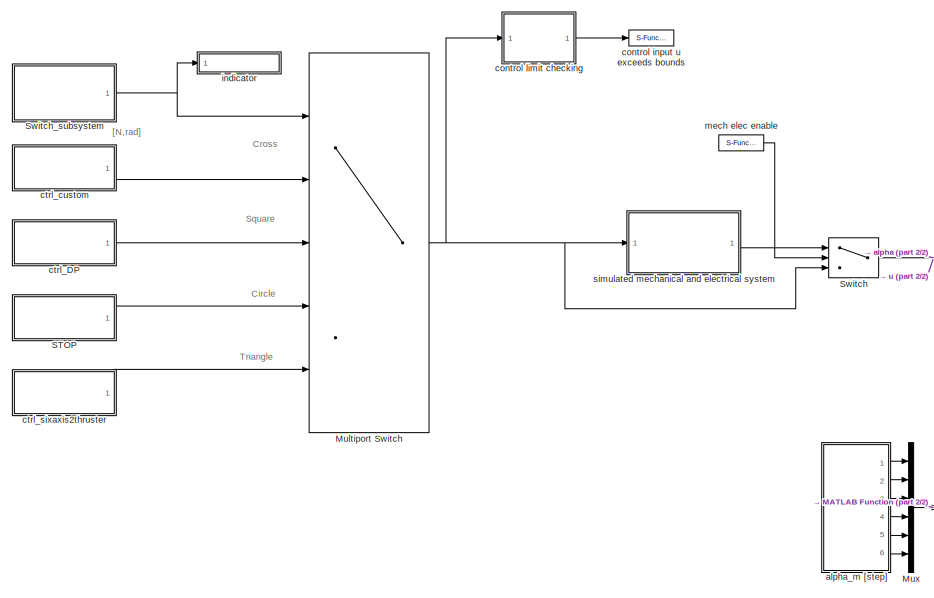
[diagram: root canvas - part 1/2, left side, full height]
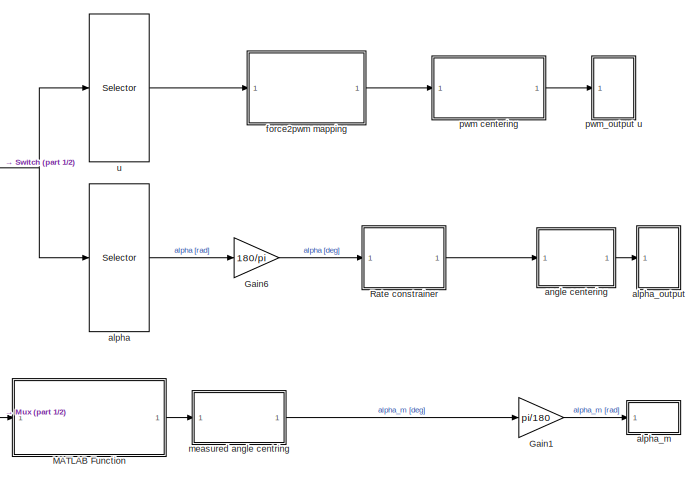
[diagram: root canvas - part 2/2, right side, full height]
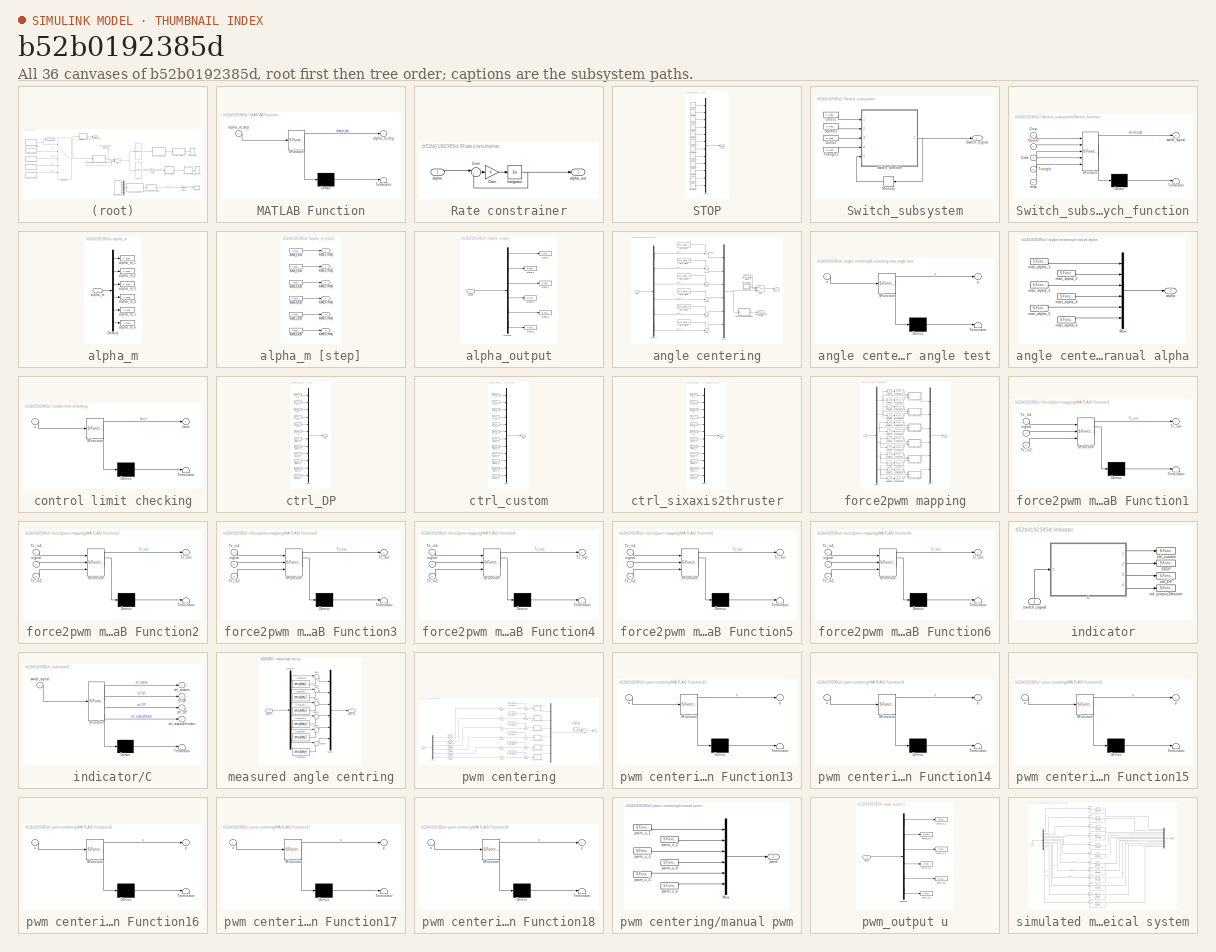
[diagram: thumbnail index - all 36 canvases of the model, root first then tree order]
MODEL slx_b52b0192385d
KIND model
CONFIG AbsTol = auto
CONFIG EnableMultiTasking = on
CONFIG FixedStep = 0.01
CONFIG MaxStep = auto
CONFIG MinStep = auto
CONFIG RelTol = 1e-3
CONFIG SampleTimeConstraint = Unconstrained
CONFIG Solver = ode3
CONFIG SolverName = ode3
CONFIG StartTime = 0.0
CONFIG StopTime = inf
BLOCK [Gain] Gain1
  Gain = pi/180
  OutDataTypeStr = Inherit: Inherit via internal rule
  ParamDataTypeStr = Inherit: Inherit via internal rule
  SaturateOnIntegerOverflow = off
BLOCK [Gain] Gain6
  Gain = 180/pi
  OutDataTypeStr = Inherit: Inherit via internal rule
  ParamDataTypeStr = Inherit: Inherit via internal rule
  SaturateOnIntegerOverflow = off
BLOCK [SubSystem] MATLAB Function
  ErrorFcn = Stateflow.Translate.translate
  PermitHierarchicalResolution = ExplicitOnly
  Ports = [1, 1]
  RequestExecContextInheritance = off
  SFBlockType = MATLAB Function
  TreatAsAtomicUnit = on
  Variant = off
BLOCK [Demux] MATLAB Function/ Demux 
  Outputs = 1
  Ports = [1, 1]
BLOCK [S-Function] MATLAB Function/ SFunction 
  EnableBusSupport = on
  FunctionName = sf_sfun
  PortCounts = [1 2]
  Ports = [1, 2]
  SFcnIsStateOwnerBlock = off
  SFunctionDeploymentMode = off
  Tag = Stateflow S-Function u2pwm 4
BLOCK [Terminator] MATLAB Function/ Terminator 
BLOCK [Outport] MATLAB Function/alpha_m_deg
  IconDisplay = Port number
BLOCK [Inport] MATLAB Function/alpha_m_step
  IconDisplay = Port number
BLOCK [MultiPortSwitch] Multiport Switch
  InputSameDT = off
  Inputs = 4
  Ports = [5, 1]
  SaturateOnIntegerOverflow = off
BLOCK [Mux] Mux
  DisplayOption = bar
  Inputs = 6
  Ports = [6, 1]
BLOCK [SubSystem] Rate constrainer
  Ports = [1, 1]
  RequestExecContextInheritance = off
  Variant = off
BLOCK [Gain] Rate constrainer/Gain
  Gain = 4
  OutDataTypeStr = Inherit: Inherit via internal rule
  ParamDataTypeStr = Inherit: Inherit via internal rule
  SaturateOnIntegerOverflow = off
BLOCK [Integrator] Rate constrainer/Integrator
  InitialCondition = [0 0 0 0 0 0]'
  Ports = [1, 1]
BLOCK [Sum] Rate constrainer/Sum
  IconShape = round
  InputSameDT = off
  Inputs = |+-
  OutDataTypeStr = Inherit: Inherit via internal rule
  Ports = [2, 1]
  SaturateOnIntegerOverflow = off
BLOCK [Inport] Rate constrainer/alpha
  IconDisplay = Port number
BLOCK [Outport] Rate constrainer/alpha_out
  IconDisplay = Port number
BLOCK [SubSystem] STOP
  Ports = [0, 1]
  RequestExecContextInheritance = off
  Variant = off
BLOCK [Constant] STOP/Constant
  Value = 0
BLOCK [Constant] STOP/Constant1
  Value = 0
BLOCK [Constant] STOP/Constant10
  Value = 0
BLOCK [Constant] STOP/Constant11
  Value = 0
BLOCK [Constant] STOP/Constant2
  Value = 0
BLOCK [Constant] STOP/Constant3
  Value = 0
BLOCK [Constant] STOP/Constant4
  Value = 0
BLOCK [Constant] STOP/Constant5
  Value = 0
BLOCK [Constant] STOP/Constant6
  Value = 0
BLOCK [Constant] STOP/Constant7
  Value = 0
BLOCK [Constant] STOP/Constant8
  Value = 0
BLOCK [Constant] STOP/Constant9
  Value = 0
BLOCK [Mux] STOP/Mux1
  DisplayOption = bar
  Inputs = 12
  Ports = [12, 1]
BLOCK [Outport] STOP/Out1
  IconDisplay = Port number
BLOCK [Switch] Switch
  Criteria = u2 ~= 0
  InputSameDT = off
  SaturateOnIntegerOverflow = off
BLOCK [SubSystem] Switch_subsystem
  Ports = [0, 1]
  RequestExecContextInheritance = off
  Variant = off
BLOCK [S-Function] Switch_subsystem/Circle1
  CopyFcn = NIVeriStand_MDL_functions('', 'IO_copy');
  DeleteFcn = NIVeriStand_MDL_functions('', 'IO_delete');
  EnableBusSupport = off
  FunctionName = NIVeriStandIO
  MoveFcn = set_param(gcb, 'Mask', 'on');
  Parameters = width dtype portnum stime stype btype
  Ports = [0, 1]
  Priority = 2
  SFcnIsStateOwnerBlock = off
  SFunctionDeploymentMode = off
BLOCK [S-Function] Switch_subsystem/Cross1
  CopyFcn = NIVeriStand_MDL_functions('', 'IO_copy');
  DeleteFcn = NIVeriStand_MDL_functions('', 'IO_delete');
  EnableBusSupport = off
  FunctionName = NIVeriStandIO
  MoveFcn = set_param(gcb, 'Mask', 'on');
  Parameters = width dtype portnum stime stype btype
  Ports = [0, 1]
  Priority = 3
  SFcnIsStateOwnerBlock = off
  SFunctionDeploymentMode = off
BLOCK [Memory] Switch_subsystem/Memory
  X0 = 4
BLOCK [S-Function] Switch_subsystem/Square1
  CopyFcn = NIVeriStand_MDL_functions('', 'IO_copy');
  DeleteFcn = NIVeriStand_MDL_functions('', 'IO_delete');
  EnableBusSupport = off
  FunctionName = NIVeriStandIO
  MoveFcn = set_param(gcb, 'Mask', 'on');
  Parameters = width dtype portnum stime stype btype
  Ports = [0, 1]
  Priority = 4
  SFcnIsStateOwnerBlock = off
  SFunctionDeploymentMode = off
BLOCK [SubSystem] Switch_subsystem/Switch_function
  ErrorFcn = Stateflow.Translate.translate
  PermitHierarchicalResolution = ExplicitOnly
  Ports = [5, 1]
  RequestExecContextInheritance = off
  SFBlockType = MATLAB Function
  TreatAsAtomicUnit = on
  Variant = off
BLOCK [Demux] Switch_subsystem/Switch_function/ Demux 
  Outputs = 1
  Ports = [1, 1]
BLOCK [S-Function] Switch_subsystem/Switch_function/ SFunction 
  EnableBusSupport = on
  FunctionName = sf_sfun
  PortCounts = [5 2]
  Ports = [5, 2]
  SFcnIsStateOwnerBlock = off
  SFunctionDeploymentMode = off
  Tag = Stateflow S-Function u2pwm 2
BLOCK [Terminator] Switch_subsystem/Switch_function/ Terminator 
BLOCK [Inport] Switch_subsystem/Switch_function/Circle
  IconDisplay = Port number
  Port = 3
BLOCK [Inport] Switch_subsystem/Switch_function/Cross
  IconDisplay = Port number
BLOCK [Inport] Switch_subsystem/Switch_function/Square
  IconDisplay = Port number
  Port = 2
BLOCK [Inport] Switch_subsystem/Switch_function/Triangle
  IconDisplay = Port number
  Port = 4
BLOCK [Outport] Switch_subsystem/Switch_function/switch_signal
  IconDisplay = Port number
BLOCK [Inport] Switch_subsystem/Switch_function/temp
  IconDisplay = Port number
  Port = 5
BLOCK [Outport] Switch_subsystem/Switch_signal
  IconDisplay = Port number
BLOCK [S-Function] Switch_subsystem/Triangle1
  CopyFcn = NIVeriStand_MDL_functions('', 'IO_copy');
  DeleteFcn = NIVeriStand_MDL_functions('', 'IO_delete');
  EnableBusSupport = off
  FunctionName = NIVeriStandIO
  MoveFcn = set_param(gcb, 'Mask', 'on');
  Parameters = width dtype portnum stime stype btype
  Ports = [0, 1]
  Priority = 1
  SFcnIsStateOwnerBlock = off
  SFunctionDeploymentMode = off
BLOCK [Selector] alpha
  IndexOptions = Index vector (dialog)
  Indices = [7 8 9 10 11 12]
  InputPortWidth = 12
  OutputSizes = 1
  Ports = [1, 1]
BLOCK [SubSystem] alpha_m
  Ports = [1]
  RequestExecContextInheritance = off
  Variant = off
BLOCK [SubSystem] alpha_m [step]
  Ports = [0, 6]
  RequestExecContextInheritance = off
  Variant = off
BLOCK [Outport] alpha_m [step]/alpha_1 [step]
  IconDisplay = Port number
BLOCK [S-Function] alpha_m [step]/alpha_1_step
  CopyFcn = NIVeriStand_MDL_functions('', 'IO_copy');
  DeleteFcn = NIVeriStand_MDL_functions('', 'IO_delete');
  EnableBusSupport = off
  FunctionName = NIVeriStandIO
  MoveFcn = set_param(gcb, 'Mask', 'on');
  Parameters = width dtype portnum stime stype btype
  Ports = [0, 1]
  Priority = 7
  SFcnIsStateOwnerBlock = off
  SFunctionDeploymentMode = off
BLOCK [Outport] alpha_m [step]/alpha_2 [step]
  IconDisplay = Port number
  Port = 2
BLOCK [S-Function] alpha_m [step]/alpha_2_step
  CopyFcn = NIVeriStand_MDL_functions('', 'IO_copy');
  DeleteFcn = NIVeriStand_MDL_functions('', 'IO_delete');
  EnableBusSupport = off
  FunctionName = NIVeriStandIO
  MoveFcn = set_param(gcb, 'Mask', 'on');
  Parameters = width dtype portnum stime stype btype
  Ports = [0, 1]
  Priority = 2
  SFcnIsStateOwnerBlock = off
  SFunctionDeploymentMode = off
BLOCK [Outport] alpha_m [step]/alpha_3 [step]
  IconDisplay = Port number
  Port = 3
BLOCK [S-Function] alpha_m [step]/alpha_3_step
  CopyFcn = NIVeriStand_MDL_functions('', 'IO_copy');
  DeleteFcn = NIVeriStand_MDL_functions('', 'IO_delete');
  EnableBusSupport = off
  FunctionName = NIVeriStandIO
  MoveFcn = set_param(gcb, 'Mask', 'on');
  Parameters = width dtype portnum stime stype btype
  Ports = [0, 1]
  Priority = 3
  SFcnIsStateOwnerBlock = off
  SFunctionDeploymentMode = off
BLOCK [Outport] alpha_m [step]/alpha_4 [step]
  IconDisplay = Port number
  Port = 4
BLOCK [S-Function] alpha_m [step]/alpha_4_step
  CopyFcn = NIVeriStand_MDL_functions('', 'IO_copy');
  DeleteFcn = NIVeriStand_MDL_functions('', 'IO_delete');
  EnableBusSupport = off
  FunctionName = NIVeriStandIO
  MoveFcn = set_param(gcb, 'Mask', 'on');
  Parameters = width dtype portnum stime stype btype
  Ports = [0, 1]
  Priority = 4
  SFcnIsStateOwnerBlock = off
  SFunctionDeploymentMode = off
BLOCK [Outport] alpha_m [step]/alpha_5 [step]
  IconDisplay = Port number
  Port = 5
BLOCK [S-Function] alpha_m [step]/alpha_5_step
  CopyFcn = NIVeriStand_MDL_functions('', 'IO_copy');
  DeleteFcn = NIVeriStand_MDL_functions('', 'IO_delete');
  EnableBusSupport = off
  FunctionName = NIVeriStandIO
  MoveFcn = set_param(gcb, 'Mask', 'on');
  Parameters = width dtype portnum stime stype btype
  Ports = [0, 1]
  Priority = 5
  SFcnIsStateOwnerBlock = off
  SFunctionDeploymentMode = off
BLOCK [Outport] alpha_m [step]/alpha_6 [step]
  IconDisplay = Port number
  Port = 6
BLOCK [S-Function] alpha_m [step]/alpha_6_step
  CopyFcn = NIVeriStand_MDL_functions('', 'IO_copy');
  DeleteFcn = NIVeriStand_MDL_functions('', 'IO_delete');
  EnableBusSupport = off
  FunctionName = NIVeriStandIO
  MoveFcn = set_param(gcb, 'Mask', 'on');
  Parameters = width dtype portnum stime stype btype
  Ports = [0, 1]
  Priority = 6
  SFcnIsStateOwnerBlock = off
  SFunctionDeploymentMode = off
BLOCK [Demux] alpha_m/Demux1
  DisplayOption = bar
  Outputs = 6
  Ports = [1, 6]
BLOCK [Inport] alpha_m/alpha_m
  IconDisplay = Port number
BLOCK [S-Function] alpha_m/alpha_m_1
  CopyFcn = NIVeriStand_MDL_functions('', 'IO_copy');
  DeleteFcn = NIVeriStand_MDL_functions('', 'IO_delete');
  EnableBusSupport = off
  FunctionName = NIVeriStandIO
  MoveFcn = set_param(gcb, 'Mask', 'on');
  Parameters = width dtype portnum stime stype btype
  Ports = [1]
  Priority = 7
  SFcnIsStateOwnerBlock = off
  SFunctionDeploymentMode = off
BLOCK [S-Function] alpha_m/alpha_m_2
  CopyFcn = NIVeriStand_MDL_functions('', 'IO_copy');
  DeleteFcn = NIVeriStand_MDL_functions('', 'IO_delete');
  EnableBusSupport = off
  FunctionName = NIVeriStandIO
  MoveFcn = set_param(gcb, 'Mask', 'on');
  Parameters = width dtype portnum stime stype btype
  Ports = [1]
  Priority = 2
  SFcnIsStateOwnerBlock = off
  SFunctionDeploymentMode = off
BLOCK [S-Function] alpha_m/alpha_m_3
  CopyFcn = NIVeriStand_MDL_functions('', 'IO_copy');
  DeleteFcn = NIVeriStand_MDL_functions('', 'IO_delete');
  EnableBusSupport = off
  FunctionName = NIVeriStandIO
  MoveFcn = set_param(gcb, 'Mask', 'on');
  Parameters = width dtype portnum stime stype btype
  Ports = [1]
  Priority = 3
  SFcnIsStateOwnerBlock = off
  SFunctionDeploymentMode = off
BLOCK [S-Function] alpha_m/alpha_m_4
  CopyFcn = NIVeriStand_MDL_functions('', 'IO_copy');
  DeleteFcn = NIVeriStand_MDL_functions('', 'IO_delete');
  EnableBusSupport = off
  FunctionName = NIVeriStandIO
  MoveFcn = set_param(gcb, 'Mask', 'on');
  Parameters = width dtype portnum stime stype btype
  Ports = [1]
  Priority = 4
  SFcnIsStateOwnerBlock = off
  SFunctionDeploymentMode = off
BLOCK [S-Function] alpha_m/alpha_m_5
  CopyFcn = NIVeriStand_MDL_functions('', 'IO_copy');
  DeleteFcn = NIVeriStand_MDL_functions('', 'IO_delete');
  EnableBusSupport = off
  FunctionName = NIVeriStandIO
  MoveFcn = set_param(gcb, 'Mask', 'on');
  Parameters = width dtype portnum stime stype btype
  Ports = [1]
  Priority = 5
  SFcnIsStateOwnerBlock = off
  SFunctionDeploymentMode = off
BLOCK [S-Function] alpha_m/alpha_m_6
  CopyFcn = NIVeriStand_MDL_functions('', 'IO_copy');
  DeleteFcn = NIVeriStand_MDL_functions('', 'IO_delete');
  EnableBusSupport = off
  FunctionName = NIVeriStandIO
  MoveFcn = set_param(gcb, 'Mask', 'on');
  Parameters = width dtype portnum stime stype btype
  Ports = [1]
  Priority = 6
  SFcnIsStateOwnerBlock = off
  SFunctionDeploymentMode = off
BLOCK [SubSystem] alpha_output
  Ports = [1]
  RequestExecContextInheritance = off
  Variant = off
BLOCK [Demux] alpha_output/Demux1
  DisplayOption = bar
  Outputs = 6
  Ports = [1, 6]
BLOCK [Inport] alpha_output/alpha
  IconDisplay = Port number
BLOCK [S-Function] alpha_output/alpha_1
  CopyFcn = NIVeriStand_MDL_functions('', 'IO_copy');
  DeleteFcn = NIVeriStand_MDL_functions('', 'IO_delete');
  EnableBusSupport = off
  FunctionName = NIVeriStandIO
  MoveFcn = set_param(gcb, 'Mask', 'on');
  Parameters = width dtype portnum stime stype btype
  Ports = [1]
  Priority = 3
  SFcnIsStateOwnerBlock = off
  SFunctionDeploymentMode = off
BLOCK [S-Function] alpha_output/alpha_2
  CopyFcn = NIVeriStand_MDL_functions('', 'IO_copy');
  DeleteFcn = NIVeriStand_MDL_functions('', 'IO_delete');
  EnableBusSupport = off
  FunctionName = NIVeriStandIO
  MoveFcn = set_param(gcb, 'Mask', 'on');
  Parameters = width dtype portnum stime stype btype
  Ports = [1]
  Priority = 1
  SFcnIsStateOwnerBlock = off
  SFunctionDeploymentMode = off
BLOCK [S-Function] alpha_output/alpha_3
  CopyFcn = NIVeriStand_MDL_functions('', 'IO_copy');
  DeleteFcn = NIVeriStand_MDL_functions('', 'IO_delete');
  EnableBusSupport = off
  FunctionName = NIVeriStandIO
  MoveFcn = set_param(gcb, 'Mask', 'on');
  Parameters = width dtype portnum stime stype btype
  Ports = [1]
  Priority = 2
  SFcnIsStateOwnerBlock = off
  SFunctionDeploymentMode = off
BLOCK [S-Function] alpha_output/alpha_4
  CopyFcn = NIVeriStand_MDL_functions('', 'IO_copy');
  DeleteFcn = NIVeriStand_MDL_functions('', 'IO_delete');
  EnableBusSupport = off
  FunctionName = NIVeriStandIO
  MoveFcn = set_param(gcb, 'Mask', 'on');
  Parameters = width dtype portnum stime stype btype
  Ports = [1]
  Priority = 5
  SFcnIsStateOwnerBlock = off
  SFunctionDeploymentMode = off
BLOCK [S-Function] alpha_output/alpha_5
  CopyFcn = NIVeriStand_MDL_functions('', 'IO_copy');
  DeleteFcn = NIVeriStand_MDL_functions('', 'IO_delete');
  EnableBusSupport = off
  FunctionName = NIVeriStandIO
  MoveFcn = set_param(gcb, 'Mask', 'on');
  Parameters = width dtype portnum stime stype btype
  Ports = [1]
  Priority = 6
  SFcnIsStateOwnerBlock = off
  SFunctionDeploymentMode = off
BLOCK [S-Function] alpha_output/alpha_6
  CopyFcn = NIVeriStand_MDL_functions('', 'IO_copy');
  DeleteFcn = NIVeriStand_MDL_functions('', 'IO_delete');
  EnableBusSupport = off
  FunctionName = NIVeriStandIO
  MoveFcn = set_param(gcb, 'Mask', 'on');
  Parameters = width dtype portnum stime stype btype
  Ports = [1]
  Priority = 4
  SFcnIsStateOwnerBlock = off
  SFunctionDeploymentMode = off
BLOCK [SubSystem] angle centering
  Ports = [1, 1]
  RequestExecContextInheritance = off
  Variant = off
BLOCK [Demux] angle centering/Demux3
  DisplayOption = bar
  Outputs = 6
  Ports = [1, 6]
BLOCK [SubSystem] angle centering/Exceeding max angle test
  ErrorFcn = Stateflow.Translate.translate
  PermitHierarchicalResolution = ExplicitOnly
  Ports = [1, 1]
  RequestExecContextInheritance = off
  SFBlockType = MATLAB Function
  TreatAsAtomicUnit = on
  Variant = off
BLOCK [Demux] angle centering/Exceeding max angle test/ Demux 
  Outputs = 1
  Ports = [1, 1]
BLOCK [S-Function] angle centering/Exceeding max angle test/ SFunction 
  EnableBusSupport = on
  FunctionName = sf_sfun
  PortCounts = [1 2]
  Ports = [1, 2]
  SFcnIsStateOwnerBlock = off
  SFunctionDeploymentMode = off
  Tag = Stateflow S-Function u2pwm 16
BLOCK [Terminator] angle centering/Exceeding max angle test/ Terminator 
BLOCK [Inport] angle centering/Exceeding max angle test/u
  IconDisplay = Port number
BLOCK [Outport] angle centering/Exceeding max angle test/y
  IconDisplay = Port number
BLOCK [Mux] angle centering/Mux2
  DisplayOption = bar
  Inputs = 6
  Ports = [6, 1]
BLOCK [S-Function] angle centering/Need unwrapping thrusters
  CopyFcn = NIVeriStand_MDL_functions('', 'IO_copy');
  DeleteFcn = NIVeriStand_MDL_functions('', 'IO_delete');
  EnableBusSupport = off
  FunctionName = NIVeriStandIO
  MoveFcn = set_param(gcb, 'Mask', 'on');
  Parameters = width dtype portnum stime stype btype
  Ports = [1]
  Priority = 2
  SFcnIsStateOwnerBlock = off
  SFunctionDeploymentMode = off
BLOCK [Sum] angle centering/Sum10
  IconShape = round
  InputSameDT = off
  Inputs = ++|
  OutDataTypeStr = Inherit: Inherit via internal rule
  Ports = [2, 1]
  SaturateOnIntegerOverflow = off
BLOCK [Sum] angle centering/Sum11
  IconShape = round
  InputSameDT = off
  Inputs = ++|
  OutDataTypeStr = Inherit: Inherit via internal rule
  Ports = [2, 1]
  SaturateOnIntegerOverflow = off
BLOCK [Sum] angle centering/Sum12
  IconShape = round
  InputSameDT = off
  Inputs = ++|
  OutDataTypeStr = Inherit: Inherit via internal rule
  Ports = [2, 1]
  SaturateOnIntegerOverflow = off
BLOCK [Sum] angle centering/Sum13
  IconShape = round
  InputSameDT = off
  Inputs = ++|
  OutDataTypeStr = Inherit: Inherit via internal rule
  Ports = [2, 1]
  SaturateOnIntegerOverflow = off
BLOCK [Sum] angle centering/Sum8
  IconShape = round
  InputSameDT = off
  Inputs = ++|
  OutDataTypeStr = Inherit: Inherit via internal rule
  Ports = [2, 1]
  SaturateOnIntegerOverflow = off
BLOCK [Sum] angle centering/Sum9
  IconShape = round
  InputSameDT = off
  Inputs = ++|
  OutDataTypeStr = Inherit: Inherit via internal rule
  Ports = [2, 1]
  SaturateOnIntegerOverflow = off
BLOCK [Switch] angle centering/Switch
  Criteria = u2 ~= 0
  InputSameDT = off
  SaturateOnIntegerOverflow = off
BLOCK [Inport] angle centering/alpha
  IconDisplay = Port number
BLOCK [Constant] angle centering/alpha_Offset
  Value = zero_alpha_1
BLOCK [Constant] angle centering/alpha_Offset1
  Value = zero_alpha_2
BLOCK [Constant] angle centering/alpha_Offset2
  Value = zero_alpha_3
BLOCK [Constant] angle centering/alpha_Offset3
  Value = zero_alpha_4
BLOCK [Constant] angle centering/alpha_Offset4
  Value = zero_alpha_5
BLOCK [Constant] angle centering/alpha_Offset5
  Value = zero_alpha_6
BLOCK [Outport] angle centering/alpha_out
  IconDisplay = Port number
BLOCK [SubSystem] angle centering/manual alpha
  Ports = [0, 1]
  RequestExecContextInheritance = off
  Variant = off
BLOCK [Mux] angle centering/manual alpha/Mux
  DisplayOption = bar
  Inputs = 6
  Ports = [6, 1]
BLOCK [Outport] angle centering/manual alpha/alpha
  IconDisplay = Port number
BLOCK [S-Function] angle centering/manual alpha/man_alpha_1
  CopyFcn = NIVeriStand_MDL_functions('', 'IO_copy');
  DeleteFcn = NIVeriStand_MDL_functions('', 'IO_delete');
  EnableBusSupport = off
  FunctionName = NIVeriStandIO
  MoveFcn = set_param(gcb, 'Mask', 'on');
  Parameters = width dtype portnum stime stype btype
  Ports = [0, 1]
  Priority = 3
  SFcnIsStateOwnerBlock = off
  SFunctionDeploymentMode = off
BLOCK [S-Function] angle centering/manual alpha/man_alpha_2
  CopyFcn = NIVeriStand_MDL_functions('', 'IO_copy');
  DeleteFcn = NIVeriStand_MDL_functions('', 'IO_delete');
  EnableBusSupport = off
  FunctionName = NIVeriStandIO
  MoveFcn = set_param(gcb, 'Mask', 'on');
  Parameters = width dtype portnum stime stype btype
  Ports = [0, 1]
  Priority = 4
  SFcnIsStateOwnerBlock = off
  SFunctionDeploymentMode = off
BLOCK [S-Function] angle centering/manual alpha/man_alpha_3
  CopyFcn = NIVeriStand_MDL_functions('', 'IO_copy');
  DeleteFcn = NIVeriStand_MDL_functions('', 'IO_delete');
  EnableBusSupport = off
  FunctionName = NIVeriStandIO
  MoveFcn = set_param(gcb, 'Mask', 'on');
  Parameters = width dtype portnum stime stype btype
  Ports = [0, 1]
  Priority = 5
  SFcnIsStateOwnerBlock = off
  SFunctionDeploymentMode = off
BLOCK [S-Function] angle centering/manual alpha/man_alpha_4
  CopyFcn = NIVeriStand_MDL_functions('', 'IO_copy');
  DeleteFcn = NIVeriStand_MDL_functions('', 'IO_delete');
  EnableBusSupport = off
  FunctionName = NIVeriStandIO
  MoveFcn = set_param(gcb, 'Mask', 'on');
  Parameters = width dtype portnum stime stype btype
  Ports = [0, 1]
  Priority = 2
  SFcnIsStateOwnerBlock = off
  SFunctionDeploymentMode = off
BLOCK [S-Function] angle centering/manual alpha/man_alpha_5
  CopyFcn = NIVeriStand_MDL_functions('', 'IO_copy');
  DeleteFcn = NIVeriStand_MDL_functions('', 'IO_delete');
  EnableBusSupport = off
  FunctionName = NIVeriStandIO
  MoveFcn = set_param(gcb, 'Mask', 'on');
  Parameters = width dtype portnum stime stype btype
  Ports = [0, 1]
  Priority = 1
  SFcnIsStateOwnerBlock = off
  SFunctionDeploymentMode = off
BLOCK [S-Function] angle centering/manual alpha/man_alpha_6
  CopyFcn = NIVeriStand_MDL_functions('', 'IO_copy');
  DeleteFcn = NIVeriStand_MDL_functions('', 'IO_delete');
  EnableBusSupport = off
  FunctionName = NIVeriStandIO
  MoveFcn = set_param(gcb, 'Mask', 'on');
  Parameters = width dtype portnum stime stype btype
  Ports = [0, 1]
  Priority = 6
  SFcnIsStateOwnerBlock = off
  SFunctionDeploymentMode = off
BLOCK [S-Function] angle centering/manual override alpha
  CopyFcn = NIVeriStand_MDL_functions('', 'IO_copy');
  DeleteFcn = NIVeriStand_MDL_functions('', 'IO_delete');
  EnableBusSupport = off
  FunctionName = NIVeriStandIO
  MoveFcn = set_param(gcb, 'Mask', 'on');
  Parameters = width dtype portnum stime stype btype
  Ports = [0, 1]
  Priority = 8
  SFcnIsStateOwnerBlock = off
  SFunctionDeploymentMode = off
BLOCK [S-Function] control input u exceeds bounds
  CopyFcn = NIVeriStand_MDL_functions('', 'IO_copy');
  DeleteFcn = NIVeriStand_MDL_functions('', 'IO_delete');
  EnableBusSupport = off
  FunctionName = NIVeriStandIO
  MoveFcn = set_param(gcb, 'Mask', 'on');
  Parameters = width dtype portnum stime stype btype
  Ports = [1]
  Priority = 1
  SFcnIsStateOwnerBlock = off
  SFunctionDeploymentMode = off
BLOCK [SubSystem] control limit checking
  ErrorFcn = Stateflow.Translate.translate
  PermitHierarchicalResolution = ExplicitOnly
  Ports = [1, 1]
  RequestExecContextInheritance = off
  SFBlockType = MATLAB Function
  TreatAsAtomicUnit = on
  Variant = off
BLOCK [Demux] control limit checking/ Demux 
  Outputs = 1
  Ports = [1, 1]
BLOCK [S-Function] control limit checking/ SFunction 
  EnableBusSupport = on
  FunctionName = sf_sfun
  PortCounts = [1 2]
  Ports = [1, 2]
  SFcnIsStateOwnerBlock = off
  SFunctionDeploymentMode = off
  Tag = Stateflow S-Function u2pwm 3
BLOCK [Terminator] control limit checking/ Terminator 
BLOCK [Outport] control limit checking/fault
  IconDisplay = Port number
BLOCK [Inport] control limit checking/u
  IconDisplay = Port number
BLOCK [SubSystem] ctrl_DP
  Ports = [0, 1]
  RequestExecContextInheritance = off
  Variant = off
BLOCK [Mux] ctrl_DP/Mux1
  DisplayOption = bar
  Inputs = 12
  Ports = [12, 1]
BLOCK [Outport] ctrl_DP/Out1
  IconDisplay = Port number
BLOCK [S-Function] ctrl_DP/alpha_1
  CopyFcn = NIVeriStand_MDL_functions('', 'IO_copy');
  DeleteFcn = NIVeriStand_MDL_functions('', 'IO_delete');
  EnableBusSupport = off
  FunctionName = NIVeriStandIO
  MoveFcn = set_param(gcb, 'Mask', 'on');
  Parameters = width dtype portnum stime stype btype
  Ports = [0, 1]
  Priority = 4
  SFcnIsStateOwnerBlock = off
  SFunctionDeploymentMode = off
BLOCK [S-Function] ctrl_DP/alpha_2
  CopyFcn = NIVeriStand_MDL_functions('', 'IO_copy');
  DeleteFcn = NIVeriStand_MDL_functions('', 'IO_delete');
  EnableBusSupport = off
  FunctionName = NIVeriStandIO
  MoveFcn = set_param(gcb, 'Mask', 'on');
  Parameters = width dtype portnum stime stype btype
  Ports = [0, 1]
  Priority = 8
  SFcnIsStateOwnerBlock = off
  SFunctionDeploymentMode = off
BLOCK [S-Function] ctrl_DP/alpha_3
  CopyFcn = NIVeriStand_MDL_functions('', 'IO_copy');
  DeleteFcn = NIVeriStand_MDL_functions('', 'IO_delete');
  EnableBusSupport = off
  FunctionName = NIVeriStandIO
  MoveFcn = set_param(gcb, 'Mask', 'on');
  Parameters = width dtype portnum stime stype btype
  Ports = [0, 1]
  Priority = 9
  SFcnIsStateOwnerBlock = off
  SFunctionDeploymentMode = off
BLOCK [S-Function] ctrl_DP/alpha_4
  CopyFcn = NIVeriStand_MDL_functions('', 'IO_copy');
  DeleteFcn = NIVeriStand_MDL_functions('', 'IO_delete');
  EnableBusSupport = off
  FunctionName = NIVeriStandIO
  MoveFcn = set_param(gcb, 'Mask', 'on');
  Parameters = width dtype portnum stime stype btype
  Ports = [0, 1]
  Priority = 10
  SFcnIsStateOwnerBlock = off
  SFunctionDeploymentMode = off
BLOCK [S-Function] ctrl_DP/alpha_5
  CopyFcn = NIVeriStand_MDL_functions('', 'IO_copy');
  DeleteFcn = NIVeriStand_MDL_functions('', 'IO_delete');
  EnableBusSupport = off
  FunctionName = NIVeriStandIO
  MoveFcn = set_param(gcb, 'Mask', 'on');
  Parameters = width dtype portnum stime stype btype
  Ports = [0, 1]
  Priority = 11
  SFcnIsStateOwnerBlock = off
  SFunctionDeploymentMode = off
BLOCK [S-Function] ctrl_DP/alpha_6
  CopyFcn = NIVeriStand_MDL_functions('', 'IO_copy');
  DeleteFcn = NIVeriStand_MDL_functions('', 'IO_delete');
  EnableBusSupport = off
  FunctionName = NIVeriStandIO
  MoveFcn = set_param(gcb, 'Mask', 'on');
  Parameters = width dtype portnum stime stype btype
  Ports = [0, 1]
  Priority = 12
  SFcnIsStateOwnerBlock = off
  SFunctionDeploymentMode = off
BLOCK [S-Function] ctrl_DP/u_1
  CopyFcn = NIVeriStand_MDL_functions('', 'IO_copy');
  DeleteFcn = NIVeriStand_MDL_functions('', 'IO_delete');
  EnableBusSupport = off
  FunctionName = NIVeriStandIO
  MoveFcn = set_param(gcb, 'Mask', 'on');
  Parameters = width dtype portnum stime stype btype
  Ports = [0, 1]
  Priority = 1
  SFcnIsStateOwnerBlock = off
  SFunctionDeploymentMode = off
BLOCK [S-Function] ctrl_DP/u_2
  CopyFcn = NIVeriStand_MDL_functions('', 'IO_copy');
  DeleteFcn = NIVeriStand_MDL_functions('', 'IO_delete');
  EnableBusSupport = off
  FunctionName = NIVeriStandIO
  MoveFcn = set_param(gcb, 'Mask', 'on');
  Parameters = width dtype portnum stime stype btype
  Ports = [0, 1]
  Priority = 5
  SFcnIsStateOwnerBlock = off
  SFunctionDeploymentMode = off
BLOCK [S-Function] ctrl_DP/u_3
  CopyFcn = NIVeriStand_MDL_functions('', 'IO_copy');
  DeleteFcn = NIVeriStand_MDL_functions('', 'IO_delete');
  EnableBusSupport = off
  FunctionName = NIVeriStandIO
  MoveFcn = set_param(gcb, 'Mask', 'on');
  Parameters = width dtype portnum stime stype btype
  Ports = [0, 1]
  Priority = 2
  SFcnIsStateOwnerBlock = off
  SFunctionDeploymentMode = off
BLOCK [S-Function] ctrl_DP/u_4
  CopyFcn = NIVeriStand_MDL_functions('', 'IO_copy');
  DeleteFcn = NIVeriStand_MDL_functions('', 'IO_delete');
  EnableBusSupport = off
  FunctionName = NIVeriStandIO
  MoveFcn = set_param(gcb, 'Mask', 'on');
  Parameters = width dtype portnum stime stype btype
  Ports = [0, 1]
  Priority = 6
  SFcnIsStateOwnerBlock = off
  SFunctionDeploymentMode = off
BLOCK [S-Function] ctrl_DP/u_5
  CopyFcn = NIVeriStand_MDL_functions('', 'IO_copy');
  DeleteFcn = NIVeriStand_MDL_functions('', 'IO_delete');
  EnableBusSupport = off
  FunctionName = NIVeriStandIO
  MoveFcn = set_param(gcb, 'Mask', 'on');
  Parameters = width dtype portnum stime stype btype
  Ports = [0, 1]
  Priority = 7
  SFcnIsStateOwnerBlock = off
  SFunctionDeploymentMode = off
BLOCK [S-Function] ctrl_DP/u_6
  CopyFcn = NIVeriStand_MDL_functions('', 'IO_copy');
  DeleteFcn = NIVeriStand_MDL_functions('', 'IO_delete');
  EnableBusSupport = off
  FunctionName = NIVeriStandIO
  MoveFcn = set_param(gcb, 'Mask', 'on');
  Parameters = width dtype portnum stime stype btype
  Ports = [0, 1]
  Priority = 3
  SFcnIsStateOwnerBlock = off
  SFunctionDeploymentMode = off
BLOCK [SubSystem] ctrl_custom
  Ports = [0, 1]
  RequestExecContextInheritance = off
  Variant = off
BLOCK [Mux] ctrl_custom/Mux1
  DisplayOption = bar
  Inputs = 12
  Ports = [12, 1]
BLOCK [Outport] ctrl_custom/Out1
  IconDisplay = Port number
BLOCK [S-Function] ctrl_custom/alpha_1
  CopyFcn = NIVeriStand_MDL_functions('', 'IO_copy');
  DeleteFcn = NIVeriStand_MDL_functions('', 'IO_delete');
  EnableBusSupport = off
  FunctionName = NIVeriStandIO
  MoveFcn = set_param(gcb, 'Mask', 'on');
  Parameters = width dtype portnum stime stype btype
  Ports = [0, 1]
  Priority = 4
  SFcnIsStateOwnerBlock = off
  SFunctionDeploymentMode = off
BLOCK [S-Function] ctrl_custom/alpha_2
  CopyFcn = NIVeriStand_MDL_functions('', 'IO_copy');
  DeleteFcn = NIVeriStand_MDL_functions('', 'IO_delete');
  EnableBusSupport = off
  FunctionName = NIVeriStandIO
  MoveFcn = set_param(gcb, 'Mask', 'on');
  Parameters = width dtype portnum stime stype btype
  Ports = [0, 1]
  Priority = 8
  SFcnIsStateOwnerBlock = off
  SFunctionDeploymentMode = off
BLOCK [S-Function] ctrl_custom/alpha_3
  CopyFcn = NIVeriStand_MDL_functions('', 'IO_copy');
  DeleteFcn = NIVeriStand_MDL_functions('', 'IO_delete');
  EnableBusSupport = off
  FunctionName = NIVeriStandIO
  MoveFcn = set_param(gcb, 'Mask', 'on');
  Parameters = width dtype portnum stime stype btype
  Ports = [0, 1]
  Priority = 9
  SFcnIsStateOwnerBlock = off
  SFunctionDeploymentMode = off
BLOCK [S-Function] ctrl_custom/alpha_4
  CopyFcn = NIVeriStand_MDL_functions('', 'IO_copy');
  DeleteFcn = NIVeriStand_MDL_functions('', 'IO_delete');
  EnableBusSupport = off
  FunctionName = NIVeriStandIO
  MoveFcn = set_param(gcb, 'Mask', 'on');
  Parameters = width dtype portnum stime stype btype
  Ports = [0, 1]
  Priority = 10
  SFcnIsStateOwnerBlock = off
  SFunctionDeploymentMode = off
BLOCK [S-Function] ctrl_custom/alpha_5
  CopyFcn = NIVeriStand_MDL_functions('', 'IO_copy');
  DeleteFcn = NIVeriStand_MDL_functions('', 'IO_delete');
  EnableBusSupport = off
  FunctionName = NIVeriStandIO
  MoveFcn = set_param(gcb, 'Mask', 'on');
  Parameters = width dtype portnum stime stype btype
  Ports = [0, 1]
  Priority = 11
  SFcnIsStateOwnerBlock = off
  SFunctionDeploymentMode = off
BLOCK [S-Function] ctrl_custom/alpha_6
  CopyFcn = NIVeriStand_MDL_functions('', 'IO_copy');
  DeleteFcn = NIVeriStand_MDL_functions('', 'IO_delete');
  EnableBusSupport = off
  FunctionName = NIVeriStandIO
  MoveFcn = set_param(gcb, 'Mask', 'on');
  Parameters = width dtype portnum stime stype btype
  Ports = [0, 1]
  Priority = 12
  SFcnIsStateOwnerBlock = off
  SFunctionDeploymentMode = off
BLOCK [S-Function] ctrl_custom/u_1
  CopyFcn = NIVeriStand_MDL_functions('', 'IO_copy');
  DeleteFcn = NIVeriStand_MDL_functions('', 'IO_delete');
  EnableBusSupport = off
  FunctionName = NIVeriStandIO
  MoveFcn = set_param(gcb, 'Mask', 'on');
  Parameters = width dtype portnum stime stype btype
  Ports = [0, 1]
  Priority = 1
  SFcnIsStateOwnerBlock = off
  SFunctionDeploymentMode = off
BLOCK [S-Function] ctrl_custom/u_2
  CopyFcn = NIVeriStand_MDL_functions('', 'IO_copy');
  DeleteFcn = NIVeriStand_MDL_functions('', 'IO_delete');
  EnableBusSupport = off
  FunctionName = NIVeriStandIO
  MoveFcn = set_param(gcb, 'Mask', 'on');
  Parameters = width dtype portnum stime stype btype
  Ports = [0, 1]
  Priority = 5
  SFcnIsStateOwnerBlock = off
  SFunctionDeploymentMode = off
BLOCK [S-Function] ctrl_custom/u_3
  CopyFcn = NIVeriStand_MDL_functions('', 'IO_copy');
  DeleteFcn = NIVeriStand_MDL_functions('', 'IO_delete');
  EnableBusSupport = off
  FunctionName = NIVeriStandIO
  MoveFcn = set_param(gcb, 'Mask', 'on');
  Parameters = width dtype portnum stime stype btype
  Ports = [0, 1]
  Priority = 2
  SFcnIsStateOwnerBlock = off
  SFunctionDeploymentMode = off
BLOCK [S-Function] ctrl_custom/u_4
  CopyFcn = NIVeriStand_MDL_functions('', 'IO_copy');
  DeleteFcn = NIVeriStand_MDL_functions('', 'IO_delete');
  EnableBusSupport = off
  FunctionName = NIVeriStandIO
  MoveFcn = set_param(gcb, 'Mask', 'on');
  Parameters = width dtype portnum stime stype btype
  Ports = [0, 1]
  Priority = 6
  SFcnIsStateOwnerBlock = off
  SFunctionDeploymentMode = off
BLOCK [S-Function] ctrl_custom/u_5
  CopyFcn = NIVeriStand_MDL_functions('', 'IO_copy');
  DeleteFcn = NIVeriStand_MDL_functions('', 'IO_delete');
  EnableBusSupport = off
  FunctionName = NIVeriStandIO
  MoveFcn = set_param(gcb, 'Mask', 'on');
  Parameters = width dtype portnum stime stype btype
  Ports = [0, 1]
  Priority = 7
  SFcnIsStateOwnerBlock = off
  SFunctionDeploymentMode = off
BLOCK [S-Function] ctrl_custom/u_6
  CopyFcn = NIVeriStand_MDL_functions('', 'IO_copy');
  DeleteFcn = NIVeriStand_MDL_functions('', 'IO_delete');
  EnableBusSupport = off
  FunctionName = NIVeriStandIO
  MoveFcn = set_param(gcb, 'Mask', 'on');
  Parameters = width dtype portnum stime stype btype
  Ports = [0, 1]
  Priority = 3
  SFcnIsStateOwnerBlock = off
  SFunctionDeploymentMode = off
BLOCK [SubSystem] ctrl_sixaxis2thruster
  Ports = [0, 1]
  RequestExecContextInheritance = off
  Variant = off
BLOCK [Mux] ctrl_sixaxis2thruster/Mux1
  DisplayOption = bar
  Inputs = 12
  Ports = [12, 1]
BLOCK [Outport] ctrl_sixaxis2thruster/Out1
  IconDisplay = Port number
BLOCK [S-Function] ctrl_sixaxis2thruster/alpha_1
  CopyFcn = NIVeriStand_MDL_functions('', 'IO_copy');
  DeleteFcn = NIVeriStand_MDL_functions('', 'IO_delete');
  EnableBusSupport = off
  FunctionName = NIVeriStandIO
  MoveFcn = set_param(gcb, 'Mask', 'on');
  Parameters = width dtype portnum stime stype btype
  Ports = [0, 1]
  Priority = 4
  SFcnIsStateOwnerBlock = off
  SFunctionDeploymentMode = off
BLOCK [S-Function] ctrl_sixaxis2thruster/alpha_2
  CopyFcn = NIVeriStand_MDL_functions('', 'IO_copy');
  DeleteFcn = NIVeriStand_MDL_functions('', 'IO_delete');
  EnableBusSupport = off
  FunctionName = NIVeriStandIO
  MoveFcn = set_param(gcb, 'Mask', 'on');
  Parameters = width dtype portnum stime stype btype
  Ports = [0, 1]
  Priority = 8
  SFcnIsStateOwnerBlock = off
  SFunctionDeploymentMode = off
BLOCK [S-Function] ctrl_sixaxis2thruster/alpha_3
  CopyFcn = NIVeriStand_MDL_functions('', 'IO_copy');
  DeleteFcn = NIVeriStand_MDL_functions('', 'IO_delete');
  EnableBusSupport = off
  FunctionName = NIVeriStandIO
  MoveFcn = set_param(gcb, 'Mask', 'on');
  Parameters = width dtype portnum stime stype btype
  Ports = [0, 1]
  Priority = 9
  SFcnIsStateOwnerBlock = off
  SFunctionDeploymentMode = off
BLOCK [S-Function] ctrl_sixaxis2thruster/alpha_4
  CopyFcn = NIVeriStand_MDL_functions('', 'IO_copy');
  DeleteFcn = NIVeriStand_MDL_functions('', 'IO_delete');
  EnableBusSupport = off
  FunctionName = NIVeriStandIO
  MoveFcn = set_param(gcb, 'Mask', 'on');
  Parameters = width dtype portnum stime stype btype
  Ports = [0, 1]
  Priority = 10
  SFcnIsStateOwnerBlock = off
  SFunctionDeploymentMode = off
BLOCK [S-Function] ctrl_sixaxis2thruster/alpha_5
  CopyFcn = NIVeriStand_MDL_functions('', 'IO_copy');
  DeleteFcn = NIVeriStand_MDL_functions('', 'IO_delete');
  EnableBusSupport = off
  FunctionName = NIVeriStandIO
  MoveFcn = set_param(gcb, 'Mask', 'on');
  Parameters = width dtype portnum stime stype btype
  Ports = [0, 1]
  Priority = 11
  SFcnIsStateOwnerBlock = off
  SFunctionDeploymentMode = off
BLOCK [S-Function] ctrl_sixaxis2thruster/alpha_6
  CopyFcn = NIVeriStand_MDL_functions('', 'IO_copy');
  DeleteFcn = NIVeriStand_MDL_functions('', 'IO_delete');
  EnableBusSupport = off
  FunctionName = NIVeriStandIO
  MoveFcn = set_param(gcb, 'Mask', 'on');
  Parameters = width dtype portnum stime stype btype
  Ports = [0, 1]
  Priority = 12
  SFcnIsStateOwnerBlock = off
  SFunctionDeploymentMode = off
BLOCK [S-Function] ctrl_sixaxis2thruster/u_1
  CopyFcn = NIVeriStand_MDL_functions('', 'IO_copy');
  DeleteFcn = NIVeriStand_MDL_functions('', 'IO_delete');
  EnableBusSupport = off
  FunctionName = NIVeriStandIO
  MoveFcn = set_param(gcb, 'Mask', 'on');
  Parameters = width dtype portnum stime stype btype
  Ports = [0, 1]
  Priority = 1
  SFcnIsStateOwnerBlock = off
  SFunctionDeploymentMode = off
BLOCK [S-Function] ctrl_sixaxis2thruster/u_2
  CopyFcn = NIVeriStand_MDL_functions('', 'IO_copy');
  DeleteFcn = NIVeriStand_MDL_functions('', 'IO_delete');
  EnableBusSupport = off
  FunctionName = NIVeriStandIO
  MoveFcn = set_param(gcb, 'Mask', 'on');
  Parameters = width dtype portnum stime stype btype
  Ports = [0, 1]
  Priority = 5
  SFcnIsStateOwnerBlock = off
  SFunctionDeploymentMode = off
BLOCK [S-Function] ctrl_sixaxis2thruster/u_3
  CopyFcn = NIVeriStand_MDL_functions('', 'IO_copy');
  DeleteFcn = NIVeriStand_MDL_functions('', 'IO_delete');
  EnableBusSupport = off
  FunctionName = NIVeriStandIO
  MoveFcn = set_param(gcb, 'Mask', 'on');
  Parameters = width dtype portnum stime stype btype
  Ports = [0, 1]
  Priority = 2
  SFcnIsStateOwnerBlock = off
  SFunctionDeploymentMode = off
BLOCK [S-Function] ctrl_sixaxis2thruster/u_4
  CopyFcn = NIVeriStand_MDL_functions('', 'IO_copy');
  DeleteFcn = NIVeriStand_MDL_functions('', 'IO_delete');
  EnableBusSupport = off
  FunctionName = NIVeriStandIO
  MoveFcn = set_param(gcb, 'Mask', 'on');
  Parameters = width dtype portnum stime stype btype
  Ports = [0, 1]
  Priority = 6
  SFcnIsStateOwnerBlock = off
  SFunctionDeploymentMode = off
BLOCK [S-Function] ctrl_sixaxis2thruster/u_5
  CopyFcn = NIVeriStand_MDL_functions('', 'IO_copy');
  DeleteFcn = NIVeriStand_MDL_functions('', 'IO_delete');
  EnableBusSupport = off
  FunctionName = NIVeriStandIO
  MoveFcn = set_param(gcb, 'Mask', 'on');
  Parameters = width dtype portnum stime stype btype
  Ports = [0, 1]
  Priority = 7
  SFcnIsStateOwnerBlock = off
  SFunctionDeploymentMode = off
BLOCK [S-Function] ctrl_sixaxis2thruster/u_6
  CopyFcn = NIVeriStand_MDL_functions('', 'IO_copy');
  DeleteFcn = NIVeriStand_MDL_functions('', 'IO_delete');
  EnableBusSupport = off
  FunctionName = NIVeriStandIO
  MoveFcn = set_param(gcb, 'Mask', 'on');
  Parameters = width dtype portnum stime stype btype
  Ports = [0, 1]
  Priority = 3
  SFcnIsStateOwnerBlock = off
  SFunctionDeploymentMode = off
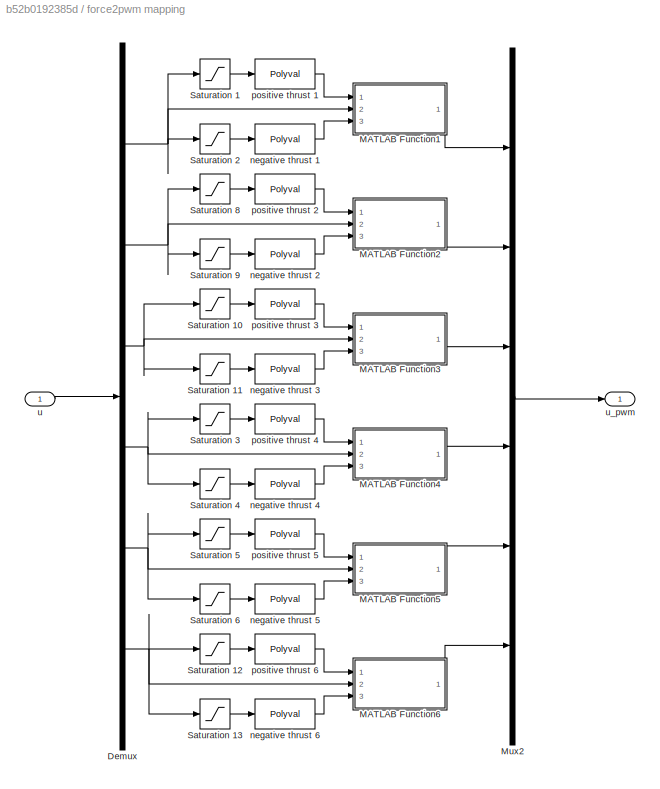
BLOCK [SubSystem] force2pwm mapping
  Ports = [1, 1]
  RequestExecContextInheritance = off
  Variant = off
BLOCK [Demux] force2pwm mapping/Demux
  DisplayOption = bar
  Outputs = 6
  Ports = [1, 6]
BLOCK [SubSystem] force2pwm mapping/MATLAB Function1
  ErrorFcn = Stateflow.Translate.translate
  PermitHierarchicalResolution = ExplicitOnly
  Ports = [3, 1]
  RequestExecContextInheritance = off
  SFBlockType = MATLAB Function
  TreatAsAtomicUnit = on
  Variant = off
BLOCK [Demux] force2pwm mapping/MATLAB Function1/ Demux 
  Outputs = 1
  Ports = [1, 1]
BLOCK [S-Function] force2pwm mapping/MATLAB Function1/ SFunction 
  EnableBusSupport = on
  FunctionName = sf_sfun
  PortCounts = [3 2]
  Ports = [3, 2]
  SFcnIsStateOwnerBlock = off
  SFunctionDeploymentMode = off
  Tag = Stateflow S-Function u2pwm 23
BLOCK [Terminator] force2pwm mapping/MATLAB Function1/ Terminator 
BLOCK [Inport] force2pwm mapping/MATLAB Function1/Tc_in1
  IconDisplay = Port number
BLOCK [Inport] force2pwm mapping/MATLAB Function1/Tc_in2
  IconDisplay = Port number
  Port = 3
BLOCK [Outport] force2pwm mapping/MATLAB Function1/Tc_out
  IconDisplay = Port number
BLOCK [Inport] force2pwm mapping/MATLAB Function1/signal
  IconDisplay = Port number
  Port = 2
BLOCK [SubSystem] force2pwm mapping/MATLAB Function2
  ErrorFcn = Stateflow.Translate.translate
  PermitHierarchicalResolution = ExplicitOnly
  Ports = [3, 1]
  RequestExecContextInheritance = off
  SFBlockType = MATLAB Function
  TreatAsAtomicUnit = on
  Variant = off
BLOCK [Demux] force2pwm mapping/MATLAB Function2/ Demux 
  Outputs = 1
  Ports = [1, 1]
BLOCK [S-Function] force2pwm mapping/MATLAB Function2/ SFunction 
  EnableBusSupport = on
  FunctionName = sf_sfun
  PortCounts = [3 2]
  Ports = [3, 2]
  SFcnIsStateOwnerBlock = off
  SFunctionDeploymentMode = off
  Tag = Stateflow S-Function u2pwm 24
BLOCK [Terminator] force2pwm mapping/MATLAB Function2/ Terminator 
BLOCK [Inport] force2pwm mapping/MATLAB Function2/Tc_in1
  IconDisplay = Port number
BLOCK [Inport] force2pwm mapping/MATLAB Function2/Tc_in2
  IconDisplay = Port number
  Port = 3
BLOCK [Outport] force2pwm mapping/MATLAB Function2/Tc_out
  IconDisplay = Port number
BLOCK [Inport] force2pwm mapping/MATLAB Function2/signal
  IconDisplay = Port number
  Port = 2
BLOCK [SubSystem] force2pwm mapping/MATLAB Function3
  ErrorFcn = Stateflow.Translate.translate
  PermitHierarchicalResolution = ExplicitOnly
  Ports = [3, 1]
  RequestExecContextInheritance = off
  SFBlockType = MATLAB Function
  TreatAsAtomicUnit = on
  Variant = off
BLOCK [Demux] force2pwm mapping/MATLAB Function3/ Demux 
  Outputs = 1
  Ports = [1, 1]
BLOCK [S-Function] force2pwm mapping/MATLAB Function3/ SFunction 
  EnableBusSupport = on
  FunctionName = sf_sfun
  PortCounts = [3 2]
  Ports = [3, 2]
  SFcnIsStateOwnerBlock = off
  SFunctionDeploymentMode = off
  Tag = Stateflow S-Function u2pwm 25
BLOCK [Terminator] force2pwm mapping/MATLAB Function3/ Terminator 
BLOCK [Inport] force2pwm mapping/MATLAB Function3/Tc_in1
  IconDisplay = Port number
BLOCK [Inport] force2pwm mapping/MATLAB Function3/Tc_in2
  IconDisplay = Port number
  Port = 3
BLOCK [Outport] force2pwm mapping/MATLAB Function3/Tc_out
  IconDisplay = Port number
BLOCK [Inport] force2pwm mapping/MATLAB Function3/signal
  IconDisplay = Port number
  Port = 2
BLOCK [SubSystem] force2pwm mapping/MATLAB Function4
  ErrorFcn = Stateflow.Translate.translate
  PermitHierarchicalResolution = ExplicitOnly
  Ports = [3, 1]
  RequestExecContextInheritance = off
  SFBlockType = MATLAB Function
  TreatAsAtomicUnit = on
  Variant = off
BLOCK [Demux] force2pwm mapping/MATLAB Function4/ Demux 
  Outputs = 1
  Ports = [1, 1]
BLOCK [S-Function] force2pwm mapping/MATLAB Function4/ SFunction 
  EnableBusSupport = on
  FunctionName = sf_sfun
  PortCounts = [3 2]
  Ports = [3, 2]
  SFcnIsStateOwnerBlock = off
  SFunctionDeploymentMode = off
  Tag = Stateflow S-Function u2pwm 26
BLOCK [Terminator] force2pwm mapping/MATLAB Function4/ Terminator 
BLOCK [Inport] force2pwm mapping/MATLAB Function4/Tc_in1
  IconDisplay = Port number
BLOCK [Inport] force2pwm mapping/MATLAB Function4/Tc_in2
  IconDisplay = Port number
  Port = 3
BLOCK [Outport] force2pwm mapping/MATLAB Function4/Tc_out
  IconDisplay = Port number
BLOCK [Inport] force2pwm mapping/MATLAB Function4/signal
  IconDisplay = Port number
  Port = 2
BLOCK [SubSystem] force2pwm mapping/MATLAB Function5
  ErrorFcn = Stateflow.Translate.translate
  PermitHierarchicalResolution = ExplicitOnly
  Ports = [3, 1]
  RequestExecContextInheritance = off
  SFBlockType = MATLAB Function
  TreatAsAtomicUnit = on
  Variant = off
BLOCK [Demux] force2pwm mapping/MATLAB Function5/ Demux 
  Outputs = 1
  Ports = [1, 1]
BLOCK [S-Function] force2pwm mapping/MATLAB Function5/ SFunction 
  EnableBusSupport = on
  FunctionName = sf_sfun
  PortCounts = [3 2]
  Ports = [3, 2]
  SFcnIsStateOwnerBlock = off
  SFunctionDeploymentMode = off
  Tag = Stateflow S-Function u2pwm 27
BLOCK [Terminator] force2pwm mapping/MATLAB Function5/ Terminator 
BLOCK [Inport] force2pwm mapping/MATLAB Function5/Tc_in1
  IconDisplay = Port number
BLOCK [Inport] force2pwm mapping/MATLAB Function5/Tc_in2
  IconDisplay = Port number
  Port = 3
BLOCK [Outport] force2pwm mapping/MATLAB Function5/Tc_out
  IconDisplay = Port number
BLOCK [Inport] force2pwm mapping/MATLAB Function5/signal
  IconDisplay = Port number
  Port = 2
BLOCK [SubSystem] force2pwm mapping/MATLAB Function6
  ErrorFcn = Stateflow.Translate.translate
  PermitHierarchicalResolution = ExplicitOnly
  Ports = [3, 1]
  RequestExecContextInheritance = off
  SFBlockType = MATLAB Function
  TreatAsAtomicUnit = on
  Variant = off
BLOCK [Demux] force2pwm mapping/MATLAB Function6/ Demux 
  Outputs = 1
  Ports = [1, 1]
BLOCK [S-Function] force2pwm mapping/MATLAB Function6/ SFunction 
  EnableBusSupport = on
  FunctionName = sf_sfun
  PortCounts = [3 2]
  Ports = [3, 2]
  SFcnIsStateOwnerBlock = off
  SFunctionDeploymentMode = off
  Tag = Stateflow S-Function u2pwm 29
BLOCK [Terminator] force2pwm mapping/MATLAB Function6/ Terminator 
BLOCK [Inport] force2pwm mapping/MATLAB Function6/Tc_in1
  IconDisplay = Port number
BLOCK [Inport] force2pwm mapping/MATLAB Function6/Tc_in2
  IconDisplay = Port number
  Port = 3
BLOCK [Outport] force2pwm mapping/MATLAB Function6/Tc_out
  IconDisplay = Port number
BLOCK [Inport] force2pwm mapping/MATLAB Function6/signal
  IconDisplay = Port number
  Port = 2
BLOCK [Mux] force2pwm mapping/Mux2
  DisplayOption = bar
  Inputs = 6
  Ports = [6, 1]
BLOCK [Saturate] force2pwm mapping/Saturation 1
  InputPortMap = u0
  LowerLimit = 0
  Ports = [1, 1]
  UpperLimit = Max_thrust
BLOCK [Saturate] force2pwm mapping/Saturation 10
  InputPortMap = u0
  LowerLimit = 0
  Ports = [1, 1]
  UpperLimit = Max_thrust
BLOCK [Saturate] force2pwm mapping/Saturation 11
  InputPortMap = u0
  LowerLimit = Min_thrust
  Ports = [1, 1]
  UpperLimit = 0
BLOCK [Saturate] force2pwm mapping/Saturation 12
  InputPortMap = u0
  LowerLimit = 0
  Ports = [1, 1]
  UpperLimit = Max_thrust
BLOCK [Saturate] force2pwm mapping/Saturation 13
  InputPortMap = u0
  LowerLimit = Min_thrust
  Ports = [1, 1]
  UpperLimit = 0
BLOCK [Saturate] force2pwm mapping/Saturation 2
  InputPortMap = u0
  LowerLimit = Min_thrust
  Ports = [1, 1]
  UpperLimit = 0
BLOCK [Saturate] force2pwm mapping/Saturation 3
  InputPortMap = u0
  LowerLimit = 0
  Ports = [1, 1]
  UpperLimit = Max_thrust
BLOCK [Saturate] force2pwm mapping/Saturation 4
  InputPortMap = u0
  LowerLimit = Min_thrust
  Ports = [1, 1]
  UpperLimit = 0
BLOCK [Saturate] force2pwm mapping/Saturation 5
  InputPortMap = u0
  LowerLimit = 0
  Ports = [1, 1]
  UpperLimit = Max_thrust
BLOCK [Saturate] force2pwm mapping/Saturation 6
  InputPortMap = u0
  LowerLimit = Min_thrust
  Ports = [1, 1]
  UpperLimit = 0
BLOCK [Saturate] force2pwm mapping/Saturation 8
  InputPortMap = u0
  LowerLimit = 0
  Ports = [1, 1]
  UpperLimit = Max_thrust
BLOCK [Saturate] force2pwm mapping/Saturation 9
  InputPortMap = u0
  LowerLimit = Min_thrust
  Ports = [1, 1]
  UpperLimit = 0
BLOCK [Polyval] force2pwm mapping/negative thrust 1
  Coefs = pwm_thr1_backward
BLOCK [Polyval] force2pwm mapping/negative thrust 2
  Coefs = pwm_thr2_backward
BLOCK [Polyval] force2pwm mapping/negative thrust 3
  Coefs = pwm_thr3_backward
BLOCK [Polyval] force2pwm mapping/negative thrust 4
  Coefs = pwm_thr4_backward
BLOCK [Polyval] force2pwm mapping/negative thrust 5
  Coefs = pwm_thr5_backward
BLOCK [Polyval] force2pwm mapping/negative thrust 6
  Coefs = pwm_thr6_backward
BLOCK [Polyval] force2pwm mapping/positive thrust 1
  Coefs = pwm_thr1_forward
BLOCK [Polyval] force2pwm mapping/positive thrust 2
  Coefs = pwm_thr2_forward
BLOCK [Polyval] force2pwm mapping/positive thrust 3
  Coefs = pwm_thr3_forward
BLOCK [Polyval] force2pwm mapping/positive thrust 4
  Coefs = pwm_thr4_forward
BLOCK [Polyval] force2pwm mapping/positive thrust 5
  Coefs = pwm_thr5_forward
BLOCK [Polyval] force2pwm mapping/positive thrust 6
  Coefs = pwm_thr6_forward
BLOCK [Inport] force2pwm mapping/u
  IconDisplay = Port number
BLOCK [Outport] force2pwm mapping/u_pwm
  IconDisplay = Port number
BLOCK [SubSystem] indicator
  Ports = [1]
  RequestExecContextInheritance = off
  Variant = off
BLOCK [SubSystem] indicator/C
  ErrorFcn = Stateflow.Translate.translate
  PermitHierarchicalResolution = ExplicitOnly
  Ports = [1, 4]
  RequestExecContextInheritance = off
  SFBlockType = MATLAB Function
  TreatAsAtomicUnit = on
  Variant = off
BLOCK [Demux] indicator/C/ Demux 
  Outputs = 1
  Ports = [1, 1]
BLOCK [S-Function] indicator/C/ SFunction 
  EnableBusSupport = on
  FunctionName = sf_sfun
  PortCounts = [1 5]
  Ports = [1, 5]
  SFcnIsStateOwnerBlock = off
  SFunctionDeploymentMode = off
  Tag = Stateflow S-Function u2pwm 1
BLOCK [Terminator] indicator/C/ Terminator 
BLOCK [Outport] indicator/C/STOP
  IconDisplay = Port number
  Port = 2
BLOCK [Outport] indicator/C/ctrl_DP
  IconDisplay = Port number
  Port = 3
BLOCK [Outport] indicator/C/ctrl_custom
  IconDisplay = Port number
BLOCK [Outport] indicator/C/ctrl_sixaxis2thruster
  IconDisplay = Port number
  Port = 4
BLOCK [Inport] indicator/C/switch_signal
  IconDisplay = Port number
BLOCK [S-Function] indicator/STOP
  CopyFcn = NIVeriStand_MDL_functions('', 'IO_copy');
  DeleteFcn = NIVeriStand_MDL_functions('', 'IO_delete');
  EnableBusSupport = off
  FunctionName = NIVeriStandIO
  MoveFcn = set_param(gcb, 'Mask', 'on');
  Parameters = width dtype portnum stime stype btype
  Ports = [1]
  Priority = 1
  SFcnIsStateOwnerBlock = off
  SFunctionDeploymentMode = off
BLOCK [S-Function] indicator/ctrl_DP
  CopyFcn = NIVeriStand_MDL_functions('', 'IO_copy');
  DeleteFcn = NIVeriStand_MDL_functions('', 'IO_delete');
  EnableBusSupport = off
  FunctionName = NIVeriStandIO
  MoveFcn = set_param(gcb, 'Mask', 'on');
  Parameters = width dtype portnum stime stype btype
  Ports = [1]
  Priority = 2
  SFcnIsStateOwnerBlock = off
  SFunctionDeploymentMode = off
BLOCK [S-Function] indicator/ctrl_custom
  CopyFcn = NIVeriStand_MDL_functions('', 'IO_copy');
  DeleteFcn = NIVeriStand_MDL_functions('', 'IO_delete');
  EnableBusSupport = off
  FunctionName = NIVeriStandIO
  MoveFcn = set_param(gcb, 'Mask', 'on');
  Parameters = width dtype portnum stime stype btype
  Ports = [1]
  Priority = 4
  SFcnIsStateOwnerBlock = off
  SFunctionDeploymentMode = off
BLOCK [S-Function] indicator/ctrl_sixaxis2thruster
  CopyFcn = NIVeriStand_MDL_functions('', 'IO_copy');
  DeleteFcn = NIVeriStand_MDL_functions('', 'IO_delete');
  EnableBusSupport = off
  FunctionName = NIVeriStandIO
  MoveFcn = set_param(gcb, 'Mask', 'on');
  Parameters = width dtype portnum stime stype btype
  Ports = [1]
  Priority = 3
  SFcnIsStateOwnerBlock = off
  SFunctionDeploymentMode = off
BLOCK [Inport] indicator/switch_signal
  IconDisplay = Port number
BLOCK [SubSystem] measured angle centring
  Ports = [1, 1]
  RequestExecContextInheritance = off
  Variant = off
BLOCK [Constant] measured angle centring/Constant
  Value = zero_alpha_1
BLOCK [Constant] measured angle centring/Constant1
  Value = zero_alpha_2
BLOCK [Constant] measured angle centring/Constant2
  Value = zero_alpha_3
BLOCK [Constant] measured angle centring/Constant3
  Value = zero_alpha_4
BLOCK [Constant] measured angle centring/Constant4
  Value = zero_alpha_5
BLOCK [Constant] measured angle centring/Constant5
  Value = zero_alpha_6
BLOCK [Demux] measured angle centring/Demux
  DisplayOption = bar
  Outputs = 6
  Ports = [1, 6]
BLOCK [Mux] measured angle centring/Mux1
  DisplayOption = bar
  Inputs = 6
  Ports = [6, 1]
BLOCK [Sum] measured angle centring/Sum
  IconShape = round
  InputSameDT = off
  Inputs = |+-
  OutDataTypeStr = Inherit: Inherit via internal rule
  Ports = [2, 1]
  SaturateOnIntegerOverflow = off
BLOCK [Sum] measured angle centring/Sum1
  IconShape = round
  InputSameDT = off
  Inputs = |+-
  OutDataTypeStr = Inherit: Inherit via internal rule
  Ports = [2, 1]
  SaturateOnIntegerOverflow = off
BLOCK [Sum] measured angle centring/Sum2
  IconShape = round
  InputSameDT = off
  Inputs = |+-
  OutDataTypeStr = Inherit: Inherit via internal rule
  Ports = [2, 1]
  SaturateOnIntegerOverflow = off
BLOCK [Sum] measured angle centring/Sum3
  IconShape = round
  InputSameDT = off
  Inputs = |+-
  OutDataTypeStr = Inherit: Inherit via internal rule
  Ports = [2, 1]
  SaturateOnIntegerOverflow = off
BLOCK [Sum] measured angle centring/Sum4
  IconShape = round
  InputSameDT = off
  Inputs = |+-
  OutDataTypeStr = Inherit: Inherit via internal rule
  Ports = [2, 1]
  SaturateOnIntegerOverflow = off
BLOCK [Sum] measured angle centring/Sum5
  IconShape = round
  InputSameDT = off
  Inputs = |+-
  OutDataTypeStr = Inherit: Inherit via internal rule
  Ports = [2, 1]
  SaturateOnIntegerOverflow = off
BLOCK [Inport] measured angle centring/alpha_m
  IconDisplay = Port number
BLOCK [Outport] measured angle centring/alpha_out
  IconDisplay = Port number
BLOCK [S-Function] mech elec enable
  CopyFcn = NIVeriStand_MDL_functions('', 'IO_copy');
  DeleteFcn = NIVeriStand_MDL_functions('', 'IO_delete');
  EnableBusSupport = off
  FunctionName = NIVeriStandIO
  MoveFcn = set_param(gcb, 'Mask', 'on');
  Parameters = width dtype portnum stime stype btype
  Ports = [0, 1]
  Priority = 1
  SFcnIsStateOwnerBlock = off
  SFunctionDeploymentMode = off
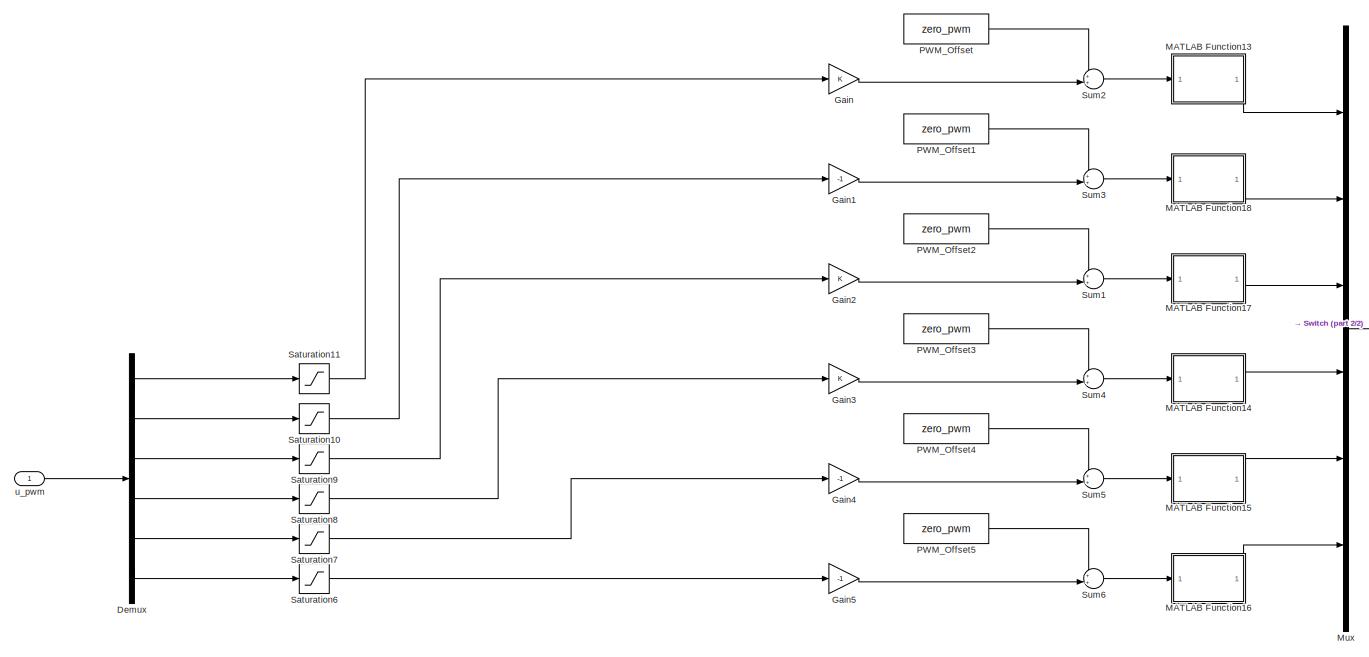
[diagram: pwm centering - part 1/2, most of the canvas]
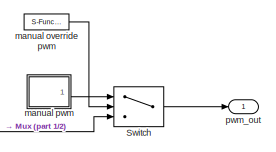
[diagram: pwm centering - part 2/2, middle right region]
BLOCK [SubSystem] pwm centering
  Ports = [1, 1]
  RequestExecContextInheritance = off
  Variant = off
BLOCK [Demux] pwm centering/Demux
  DisplayOption = bar
  Outputs = 6
  Ports = [1, 6]
BLOCK [Gain] pwm centering/Gain
  OutDataTypeStr = Inherit: Inherit via internal rule
  ParamDataTypeStr = Inherit: Inherit via internal rule
  SaturateOnIntegerOverflow = off
BLOCK [Gain] pwm centering/Gain1
  Gain = -1
  OutDataTypeStr = Inherit: Inherit via internal rule
  ParamDataTypeStr = Inherit: Inherit via internal rule
  SaturateOnIntegerOverflow = off
BLOCK [Gain] pwm centering/Gain2
  OutDataTypeStr = Inherit: Inherit via internal rule
  ParamDataTypeStr = Inherit: Inherit via internal rule
  SaturateOnIntegerOverflow = off
BLOCK [Gain] pwm centering/Gain3
  OutDataTypeStr = Inherit: Inherit via internal rule
  ParamDataTypeStr = Inherit: Inherit via internal rule
  SaturateOnIntegerOverflow = off
BLOCK [Gain] pwm centering/Gain4
  Gain = -1
  OutDataTypeStr = Inherit: Inherit via internal rule
  ParamDataTypeStr = Inherit: Inherit via internal rule
  SaturateOnIntegerOverflow = off
BLOCK [Gain] pwm centering/Gain5
  Gain = -1
  OutDataTypeStr = Inherit: Inherit via internal rule
  ParamDataTypeStr = Inherit: Inherit via internal rule
  SaturateOnIntegerOverflow = off
BLOCK [SubSystem] pwm centering/MATLAB Function13
  ErrorFcn = Stateflow.Translate.translate
  PermitHierarchicalResolution = ExplicitOnly
  Ports = [1, 1]
  RequestExecContextInheritance = off
  SFBlockType = MATLAB Function
  TreatAsAtomicUnit = on
  Variant = off
BLOCK [Demux] pwm centering/MATLAB Function13/ Demux 
  Outputs = 1
  Ports = [1, 1]
BLOCK [S-Function] pwm centering/MATLAB Function13/ SFunction 
  EnableBusSupport = on
  FunctionName = sf_sfun
  PortCounts = [1 2]
  Ports = [1, 2]
  SFcnIsStateOwnerBlock = off
  SFunctionDeploymentMode = off
  Tag = Stateflow S-Function u2pwm 17
BLOCK [Terminator] pwm centering/MATLAB Function13/ Terminator 
BLOCK [Inport] pwm centering/MATLAB Function13/u
  IconDisplay = Port number
BLOCK [Outport] pwm centering/MATLAB Function13/y
  IconDisplay = Port number
BLOCK [SubSystem] pwm centering/MATLAB Function14
  ErrorFcn = Stateflow.Translate.translate
  PermitHierarchicalResolution = ExplicitOnly
  Ports = [1, 1]
  RequestExecContextInheritance = off
  SFBlockType = MATLAB Function
  TreatAsAtomicUnit = on
  Variant = off
BLOCK [Demux] pwm centering/MATLAB Function14/ Demux 
  Outputs = 1
  Ports = [1, 1]
BLOCK [S-Function] pwm centering/MATLAB Function14/ SFunction 
  EnableBusSupport = on
  FunctionName = sf_sfun
  PortCounts = [1 2]
  Ports = [1, 2]
  SFcnIsStateOwnerBlock = off
  SFunctionDeploymentMode = off
  Tag = Stateflow S-Function u2pwm 18
BLOCK [Terminator] pwm centering/MATLAB Function14/ Terminator 
BLOCK [Inport] pwm centering/MATLAB Function14/u
  IconDisplay = Port number
BLOCK [Outport] pwm centering/MATLAB Function14/y
  IconDisplay = Port number
BLOCK [SubSystem] pwm centering/MATLAB Function15
  ErrorFcn = Stateflow.Translate.translate
  PermitHierarchicalResolution = ExplicitOnly
  Ports = [1, 1]
  RequestExecContextInheritance = off
  SFBlockType = MATLAB Function
  TreatAsAtomicUnit = on
  Variant = off
BLOCK [Demux] pwm centering/MATLAB Function15/ Demux 
  Outputs = 1
  Ports = [1, 1]
BLOCK [S-Function] pwm centering/MATLAB Function15/ SFunction 
  EnableBusSupport = on
  FunctionName = sf_sfun
  PortCounts = [1 2]
  Ports = [1, 2]
  SFcnIsStateOwnerBlock = off
  SFunctionDeploymentMode = off
  Tag = Stateflow S-Function u2pwm 19
BLOCK [Terminator] pwm centering/MATLAB Function15/ Terminator 
BLOCK [Inport] pwm centering/MATLAB Function15/u
  IconDisplay = Port number
BLOCK [Outport] pwm centering/MATLAB Function15/y
  IconDisplay = Port number
BLOCK [SubSystem] pwm centering/MATLAB Function16
  ErrorFcn = Stateflow.Translate.translate
  PermitHierarchicalResolution = ExplicitOnly
  Ports = [1, 1]
  RequestExecContextInheritance = off
  SFBlockType = MATLAB Function
  TreatAsAtomicUnit = on
  Variant = off
BLOCK [Demux] pwm centering/MATLAB Function16/ Demux 
  Outputs = 1
  Ports = [1, 1]
BLOCK [S-Function] pwm centering/MATLAB Function16/ SFunction 
  EnableBusSupport = on
  FunctionName = sf_sfun
  PortCounts = [1 2]
  Ports = [1, 2]
  SFcnIsStateOwnerBlock = off
  SFunctionDeploymentMode = off
  Tag = Stateflow S-Function u2pwm 20
BLOCK [Terminator] pwm centering/MATLAB Function16/ Terminator 
BLOCK [Inport] pwm centering/MATLAB Function16/u
  IconDisplay = Port number
BLOCK [Outport] pwm centering/MATLAB Function16/y
  IconDisplay = Port number
BLOCK [SubSystem] pwm centering/MATLAB Function17
  ErrorFcn = Stateflow.Translate.translate
  PermitHierarchicalResolution = ExplicitOnly
  Ports = [1, 1]
  RequestExecContextInheritance = off
  SFBlockType = MATLAB Function
  TreatAsAtomicUnit = on
  Variant = off
BLOCK [Demux] pwm centering/MATLAB Function17/ Demux 
  Outputs = 1
  Ports = [1, 1]
BLOCK [S-Function] pwm centering/MATLAB Function17/ SFunction 
  EnableBusSupport = on
  FunctionName = sf_sfun
  PortCounts = [1 2]
  Ports = [1, 2]
  SFcnIsStateOwnerBlock = off
  SFunctionDeploymentMode = off
  Tag = Stateflow S-Function u2pwm 21
BLOCK [Terminator] pwm centering/MATLAB Function17/ Terminator 
BLOCK [Inport] pwm centering/MATLAB Function17/u
  IconDisplay = Port number
BLOCK [Outport] pwm centering/MATLAB Function17/y
  IconDisplay = Port number
BLOCK [SubSystem] pwm centering/MATLAB Function18
  ErrorFcn = Stateflow.Translate.translate
  PermitHierarchicalResolution = ExplicitOnly
  Ports = [1, 1]
  RequestExecContextInheritance = off
  SFBlockType = MATLAB Function
  TreatAsAtomicUnit = on
  Variant = off
BLOCK [Demux] pwm centering/MATLAB Function18/ Demux 
  Outputs = 1
  Ports = [1, 1]
BLOCK [S-Function] pwm centering/MATLAB Function18/ SFunction 
  EnableBusSupport = on
  FunctionName = sf_sfun
  PortCounts = [1 2]
  Ports = [1, 2]
  SFcnIsStateOwnerBlock = off
  SFunctionDeploymentMode = off
  Tag = Stateflow S-Function u2pwm 22
BLOCK [Terminator] pwm centering/MATLAB Function18/ Terminator 
BLOCK [Inport] pwm centering/MATLAB Function18/u
  IconDisplay = Port number
BLOCK [Outport] pwm centering/MATLAB Function18/y
  IconDisplay = Port number
BLOCK [Mux] pwm centering/Mux
  DisplayOption = bar
  Inputs = 6
  Ports = [6, 1]
BLOCK [Constant] pwm centering/PWM_Offset
  Value = zero_pwm
BLOCK [Constant] pwm centering/PWM_Offset1
  Value = zero_pwm
BLOCK [Constant] pwm centering/PWM_Offset2
  Value = zero_pwm
BLOCK [Constant] pwm centering/PWM_Offset3
  Value = zero_pwm
BLOCK [Constant] pwm centering/PWM_Offset4
  Value = zero_pwm
BLOCK [Constant] pwm centering/PWM_Offset5
  Value = zero_pwm
BLOCK [Saturate] pwm centering/Saturation10
  InputPortMap = u0
  Ports = [1, 1]
BLOCK [Saturate] pwm centering/Saturation11
  InputPortMap = u0
  Ports = [1, 1]
BLOCK [Saturate] pwm centering/Saturation6
  InputPortMap = u0
  Ports = [1, 1]
BLOCK [Saturate] pwm centering/Saturation7
  InputPortMap = u0
  Ports = [1, 1]
BLOCK [Saturate] pwm centering/Saturation8
  InputPortMap = u0
  Ports = [1, 1]
BLOCK [Saturate] pwm centering/Saturation9
  InputPortMap = u0
  Ports = [1, 1]
BLOCK [Sum] pwm centering/Sum1
  IconShape = round
  InputSameDT = off
  Inputs = ++|
  OutDataTypeStr = Inherit: Inherit via internal rule
  Ports = [2, 1]
  SaturateOnIntegerOverflow = off
BLOCK [Sum] pwm centering/Sum2
  IconShape = round
  InputSameDT = off
  Inputs = ++|
  OutDataTypeStr = Inherit: Inherit via internal rule
  Ports = [2, 1]
  SaturateOnIntegerOverflow = off
BLOCK [Sum] pwm centering/Sum3
  IconShape = round
  InputSameDT = off
  Inputs = ++|
  OutDataTypeStr = Inherit: Inherit via internal rule
  Ports = [2, 1]
  SaturateOnIntegerOverflow = off
BLOCK [Sum] pwm centering/Sum4
  IconShape = round
  InputSameDT = off
  Inputs = ++|
  OutDataTypeStr = Inherit: Inherit via internal rule
  Ports = [2, 1]
  SaturateOnIntegerOverflow = off
BLOCK [Sum] pwm centering/Sum5
  IconShape = round
  InputSameDT = off
  Inputs = ++|
  OutDataTypeStr = Inherit: Inherit via internal rule
  Ports = [2, 1]
  SaturateOnIntegerOverflow = off
BLOCK [Sum] pwm centering/Sum6
  IconShape = round
  InputSameDT = off
  Inputs = ++|
  OutDataTypeStr = Inherit: Inherit via internal rule
  Ports = [2, 1]
  SaturateOnIntegerOverflow = off
BLOCK [Switch] pwm centering/Switch
  Criteria = u2 ~= 0
  InputSameDT = off
  SaturateOnIntegerOverflow = off
BLOCK [S-Function] pwm centering/manual override pwm
  CopyFcn = NIVeriStand_MDL_functions('', 'IO_copy');
  DeleteFcn = NIVeriStand_MDL_functions('', 'IO_delete');
  EnableBusSupport = off
  FunctionName = NIVeriStandIO
  MoveFcn = set_param(gcb, 'Mask', 'on');
  Parameters = width dtype portnum stime stype btype
  Ports = [0, 1]
  Priority = 9
  SFcnIsStateOwnerBlock = off
  SFunctionDeploymentMode = off
BLOCK [SubSystem] pwm centering/manual pwm
  Ports = [0, 1]
  RequestExecContextInheritance = off
  Variant = off
BLOCK [Mux] pwm centering/manual pwm/Mux
  DisplayOption = bar
  Inputs = 6
  Ports = [6, 1]
BLOCK [Outport] pwm centering/manual pwm/pwm
  IconDisplay = Port number
BLOCK [S-Function] pwm centering/manual pwm/pwm_u_1
  CopyFcn = NIVeriStand_MDL_functions('', 'IO_copy');
  DeleteFcn = NIVeriStand_MDL_functions('', 'IO_delete');
  EnableBusSupport = off
  FunctionName = NIVeriStandIO
  MoveFcn = set_param(gcb, 'Mask', 'on');
  Parameters = width dtype portnum stime stype btype
  Ports = [0, 1]
  Priority = 3
  SFcnIsStateOwnerBlock = off
  SFunctionDeploymentMode = off
BLOCK [S-Function] pwm centering/manual pwm/pwm_u_2
  CopyFcn = NIVeriStand_MDL_functions('', 'IO_copy');
  DeleteFcn = NIVeriStand_MDL_functions('', 'IO_delete');
  EnableBusSupport = off
  FunctionName = NIVeriStandIO
  MoveFcn = set_param(gcb, 'Mask', 'on');
  Parameters = width dtype portnum stime stype btype
  Ports = [0, 1]
  Priority = 5
  SFcnIsStateOwnerBlock = off
  SFunctionDeploymentMode = off
BLOCK [S-Function] pwm centering/manual pwm/pwm_u_3
  CopyFcn = NIVeriStand_MDL_functions('', 'IO_copy');
  DeleteFcn = NIVeriStand_MDL_functions('', 'IO_delete');
  EnableBusSupport = off
  FunctionName = NIVeriStandIO
  MoveFcn = set_param(gcb, 'Mask', 'on');
  Parameters = width dtype portnum stime stype btype
  Ports = [0, 1]
  Priority = 6
  SFcnIsStateOwnerBlock = off
  SFunctionDeploymentMode = off
BLOCK [S-Function] pwm centering/manual pwm/pwm_u_4
  CopyFcn = NIVeriStand_MDL_functions('', 'IO_copy');
  DeleteFcn = NIVeriStand_MDL_functions('', 'IO_delete');
  EnableBusSupport = off
  FunctionName = NIVeriStandIO
  MoveFcn = set_param(gcb, 'Mask', 'on');
  Parameters = width dtype portnum stime stype btype
  Ports = [0, 1]
  Priority = 2
  SFcnIsStateOwnerBlock = off
  SFunctionDeploymentMode = off
BLOCK [S-Function] pwm centering/manual pwm/pwm_u_5
  CopyFcn = NIVeriStand_MDL_functions('', 'IO_copy');
  DeleteFcn = NIVeriStand_MDL_functions('', 'IO_delete');
  EnableBusSupport = off
  FunctionName = NIVeriStandIO
  MoveFcn = set_param(gcb, 'Mask', 'on');
  Parameters = width dtype portnum stime stype btype
  Ports = [0, 1]
  Priority = 1
  SFcnIsStateOwnerBlock = off
  SFunctionDeploymentMode = off
BLOCK [S-Function] pwm centering/manual pwm/pwm_u_6
  CopyFcn = NIVeriStand_MDL_functions('', 'IO_copy');
  DeleteFcn = NIVeriStand_MDL_functions('', 'IO_delete');
  EnableBusSupport = off
  FunctionName = NIVeriStandIO
  MoveFcn = set_param(gcb, 'Mask', 'on');
  Parameters = width dtype portnum stime stype btype
  Ports = [0, 1]
  Priority = 4
  SFcnIsStateOwnerBlock = off
  SFunctionDeploymentMode = off
BLOCK [Outport] pwm centering/pwm_out
  IconDisplay = Port number
BLOCK [Inport] pwm centering/u_pwm
  IconDisplay = Port number
BLOCK [SubSystem] pwm_output u
  Ports = [1]
  RequestExecContextInheritance = off
  Variant = off
BLOCK [Demux] pwm_output u/Demux1
  DisplayOption = bar
  Outputs = 6
  Ports = [1, 6]
BLOCK [Inport] pwm_output u/pwm
  IconDisplay = Port number
BLOCK [S-Function] pwm_output u/pwm_u_1
  CopyFcn = NIVeriStand_MDL_functions('', 'IO_copy');
  DeleteFcn = NIVeriStand_MDL_functions('', 'IO_delete');
  EnableBusSupport = off
  FunctionName = NIVeriStandIO
  MoveFcn = set_param(gcb, 'Mask', 'on');
  Parameters = width dtype portnum stime stype btype
  Ports = [1]
  Priority = 3
  SFcnIsStateOwnerBlock = off
  SFunctionDeploymentMode = off
BLOCK [S-Function] pwm_output u/pwm_u_2
  CopyFcn = NIVeriStand_MDL_functions('', 'IO_copy');
  DeleteFcn = NIVeriStand_MDL_functions('', 'IO_delete');
  EnableBusSupport = off
  FunctionName = NIVeriStandIO
  MoveFcn = set_param(gcb, 'Mask', 'on');
  Parameters = width dtype portnum stime stype btype
  Ports = [1]
  Priority = 1
  SFcnIsStateOwnerBlock = off
  SFunctionDeploymentMode = off
BLOCK [S-Function] pwm_output u/pwm_u_3
  CopyFcn = NIVeriStand_MDL_functions('', 'IO_copy');
  DeleteFcn = NIVeriStand_MDL_functions('', 'IO_delete');
  EnableBusSupport = off
  FunctionName = NIVeriStandIO
  MoveFcn = set_param(gcb, 'Mask', 'on');
  Parameters = width dtype portnum stime stype btype
  Ports = [1]
  Priority = 2
  SFcnIsStateOwnerBlock = off
  SFunctionDeploymentMode = off
BLOCK [S-Function] pwm_output u/pwm_u_4
  CopyFcn = NIVeriStand_MDL_functions('', 'IO_copy');
  DeleteFcn = NIVeriStand_MDL_functions('', 'IO_delete');
  EnableBusSupport = off
  FunctionName = NIVeriStandIO
  MoveFcn = set_param(gcb, 'Mask', 'on');
  Parameters = width dtype portnum stime stype btype
  Ports = [1]
  Priority = 5
  SFcnIsStateOwnerBlock = off
  SFunctionDeploymentMode = off
BLOCK [S-Function] pwm_output u/pwm_u_5
  CopyFcn = NIVeriStand_MDL_functions('', 'IO_copy');
  DeleteFcn = NIVeriStand_MDL_functions('', 'IO_delete');
  EnableBusSupport = off
  FunctionName = NIVeriStandIO
  MoveFcn = set_param(gcb, 'Mask', 'on');
  Parameters = width dtype portnum stime stype btype
  Ports = [1]
  Priority = 6
  SFcnIsStateOwnerBlock = off
  SFunctionDeploymentMode = off
BLOCK [S-Function] pwm_output u/pwm_u_6
  CopyFcn = NIVeriStand_MDL_functions('', 'IO_copy');
  DeleteFcn = NIVeriStand_MDL_functions('', 'IO_delete');
  EnableBusSupport = off
  FunctionName = NIVeriStandIO
  MoveFcn = set_param(gcb, 'Mask', 'on');
  Parameters = width dtype portnum stime stype btype
  Ports = [1]
  Priority = 4
  SFcnIsStateOwnerBlock = off
  SFunctionDeploymentMode = off
BLOCK [SubSystem] simulated mechanical and electrical system
  Ports = [1, 1]
  RequestExecContextInheritance = off
  Variant = off
BLOCK [Demux] simulated mechanical and electrical system/Demux
  DisplayOption = bar
  Outputs = 12
  Ports = [1, 12]
BLOCK [Integrator] simulated mechanical and electrical system/Integrator
  Ports = [1, 1]
BLOCK [Integrator] simulated mechanical and electrical system/Integrator1
  Ports = [1, 1]
BLOCK [Integrator] simulated mechanical and electrical system/Integrator10
  Ports = [1, 1]
BLOCK [Integrator] simulated mechanical and electrical system/Integrator11
  Ports = [1, 1]
BLOCK [Integrator] simulated mechanical and electrical system/Integrator2
  Ports = [1, 1]
BLOCK [Integrator] simulated mechanical and electrical system/Integrator3
  Ports = [1, 1]
BLOCK [Integrator] simulated mechanical and electrical system/Integrator4
  Ports = [1, 1]
BLOCK [Integrator] simulated mechanical and electrical system/Integrator5
  Ports = [1, 1]
BLOCK [Integrator] simulated mechanical and electrical system/Integrator6
  Ports = [1, 1]
BLOCK [Integrator] simulated mechanical and electrical system/Integrator7
  Ports = [1, 1]
BLOCK [Integrator] simulated mechanical and electrical system/Integrator8
  Ports = [1, 1]
BLOCK [Integrator] simulated mechanical and electrical system/Integrator9
  Ports = [1, 1]
BLOCK [Mux] simulated mechanical and electrical system/Mux
  DisplayOption = bar
  Inputs = 12
  Ports = [12, 1]
BLOCK [Sum] simulated mechanical and electrical system/Sum
  IconShape = round
  InputSameDT = off
  Inputs = |+-
  OutDataTypeStr = Inherit: Inherit via internal rule
  Ports = [2, 1]
  SaturateOnIntegerOverflow = off
BLOCK [Sum] simulated mechanical and electrical system/Sum1
  IconShape = round
  InputSameDT = off
  Inputs = |+-
  OutDataTypeStr = Inherit: Inherit via internal rule
  Ports = [2, 1]
  SaturateOnIntegerOverflow = off
BLOCK [Sum] simulated mechanical and electrical system/Sum10
  IconShape = round
  InputSameDT = off
  Inputs = |+-
  OutDataTypeStr = Inherit: Inherit via internal rule
  Ports = [2, 1]
  SaturateOnIntegerOverflow = off
BLOCK [Sum] simulated mechanical and electrical system/Sum11
  IconShape = round
  InputSameDT = off
  Inputs = |+-
  OutDataTypeStr = Inherit: Inherit via internal rule
  Ports = [2, 1]
  SaturateOnIntegerOverflow = off
BLOCK [Sum] simulated mechanical and electrical system/Sum2
  IconShape = round
  InputSameDT = off
  Inputs = |+-
  OutDataTypeStr = Inherit: Inherit via internal rule
  Ports = [2, 1]
  SaturateOnIntegerOverflow = off
BLOCK [Sum] simulated mechanical and electrical system/Sum3
  IconShape = round
  InputSameDT = off
  Inputs = |+-
  OutDataTypeStr = Inherit: Inherit via internal rule
  Ports = [2, 1]
  SaturateOnIntegerOverflow = off
BLOCK [Sum] simulated mechanical and electrical system/Sum4
  IconShape = round
  InputSameDT = off
  Inputs = |+-
  OutDataTypeStr = Inherit: Inherit via internal rule
  Ports = [2, 1]
  SaturateOnIntegerOverflow = off
BLOCK [Sum] simulated mechanical and electrical system/Sum5
  IconShape = round
  InputSameDT = off
  Inputs = |+-
  OutDataTypeStr = Inherit: Inherit via internal rule
  Ports = [2, 1]
  SaturateOnIntegerOverflow = off
BLOCK [Sum] simulated mechanical and electrical system/Sum6
  IconShape = round
  InputSameDT = off
  Inputs = |+-
  OutDataTypeStr = Inherit: Inherit via internal rule
  Ports = [2, 1]
  SaturateOnIntegerOverflow = off
BLOCK [Sum] simulated mechanical and electrical system/Sum7
  IconShape = round
  InputSameDT = off
  Inputs = |+-
  OutDataTypeStr = Inherit: Inherit via internal rule
  Ports = [2, 1]
  SaturateOnIntegerOverflow = off
BLOCK [Sum] simulated mechanical and electrical system/Sum8
  IconShape = round
  InputSameDT = off
  Inputs = |+-
  OutDataTypeStr = Inherit: Inherit via internal rule
  Ports = [2, 1]
  SaturateOnIntegerOverflow = off
BLOCK [Sum] simulated mechanical and electrical system/Sum9
  IconShape = round
  InputSameDT = off
  Inputs = |+-
  OutDataTypeStr = Inherit: Inherit via internal rule
  Ports = [2, 1]
  SaturateOnIntegerOverflow = off
BLOCK [Outport] simulated mechanical and electrical system/u
  IconDisplay = Port number
BLOCK [Inport] simulated mechanical and electrical system/u_d
  IconDisplay = Port number
BLOCK [Selector] u
  IndexOptions = Index vector (dialog)
  Indices = [1 2 3 4 5 6]
  InputPortWidth = 12
  OutputSizes = 1
  Ports = [1, 1]
ANNOTATION (root): Circle
ANNOTATION (root): Cross
ANNOTATION (root): Square
ANNOTATION (root): Triangle
ANNOTATION (root): [N,rad]
LINE Gain1:1 -> alpha_m:1
LINE Gain6:1 -> Rate constrainer:1
LINE MATLAB Function:1 -> measured angle centring:1
NET Multiport Switch:1 -> Switch:3, control limit checking:1, simulated mechanical and electrical system:1
LINE Mux:1 -> MATLAB Function:1
LINE Rate constrainer/Gain:1 -> Rate constrainer/Integrator:1
NET Rate constrainer/Integrator:1 -> Rate constrainer/Sum:2, Rate constrainer/alpha_out:1
LINE Rate constrainer/Sum:1 -> Rate constrainer/Gain:1
LINE Rate constrainer/alpha:1 -> Rate constrainer/Sum:1
LINE Rate constrainer:1 -> angle centering:1
LINE STOP/Constant10:1 -> STOP/Mux1:11
LINE STOP/Constant11:1 -> STOP/Mux1:12
LINE STOP/Constant1:1 -> STOP/Mux1:2
LINE STOP/Constant2:1 -> STOP/Mux1:3
LINE STOP/Constant3:1 -> STOP/Mux1:4
LINE STOP/Constant4:1 -> STOP/Mux1:5
LINE STOP/Constant5:1 -> STOP/Mux1:6
LINE STOP/Constant6:1 -> STOP/Mux1:7
LINE STOP/Constant7:1 -> STOP/Mux1:8
LINE STOP/Constant8:1 -> STOP/Mux1:9
LINE STOP/Constant9:1 -> STOP/Mux1:10
LINE STOP/Constant:1 -> STOP/Mux1:1
LINE STOP/Mux1:1 -> STOP/Out1:1
LINE STOP:1 -> Multiport Switch:4
NET Switch:1 -> alpha:1, u:1
LINE Switch_subsystem/Circle1:1 -> Switch_subsystem/Switch_function:3
LINE Switch_subsystem/Cross1:1 -> Switch_subsystem/Switch_function:1
LINE Switch_subsystem/Memory:1 -> Switch_subsystem/Switch_function:5
LINE Switch_subsystem/Square1:1 -> Switch_subsystem/Switch_function:2
NET Switch_subsystem/Switch_function:1 -> Switch_subsystem/Memory:1, Switch_subsystem/Switch_signal:1
LINE Switch_subsystem/Triangle1:1 -> Switch_subsystem/Switch_function:4
NET Switch_subsystem:1 -> Multiport Switch:1, indicator:1
LINE alpha:1 -> Gain6:1
LINE alpha_m [step]/alpha_1_step:1 -> alpha_m [step]/alpha_1 [step]:1
LINE alpha_m [step]/alpha_2_step:1 -> alpha_m [step]/alpha_2 [step]:1
LINE alpha_m [step]/alpha_3_step:1 -> alpha_m [step]/alpha_3 [step]:1
LINE alpha_m [step]/alpha_4_step:1 -> alpha_m [step]/alpha_4 [step]:1
LINE alpha_m [step]/alpha_5_step:1 -> alpha_m [step]/alpha_5 [step]:1
LINE alpha_m [step]/alpha_6_step:1 -> alpha_m [step]/alpha_6 [step]:1
LINE alpha_m [step]:1 -> Mux:1
LINE alpha_m [step]:2 -> Mux:2
LINE alpha_m [step]:3 -> Mux:3
LINE alpha_m [step]:4 -> Mux:4
LINE alpha_m [step]:5 -> Mux:5
LINE alpha_m [step]:6 -> Mux:6
LINE alpha_m/Demux1:1 -> alpha_m/alpha_m_1:1
LINE alpha_m/Demux1:2 -> alpha_m/alpha_m_2:1
LINE alpha_m/Demux1:3 -> alpha_m/alpha_m_3:1
LINE alpha_m/Demux1:4 -> alpha_m/alpha_m_4:1
LINE alpha_m/Demux1:5 -> alpha_m/alpha_m_5:1
LINE alpha_m/Demux1:6 -> alpha_m/alpha_m_6:1
LINE alpha_m/alpha_m:1 -> alpha_m/Demux1:1
LINE alpha_output/Demux1:1 -> alpha_output/alpha_1:1
LINE alpha_output/Demux1:2 -> alpha_output/alpha_2:1
LINE alpha_output/Demux1:3 -> alpha_output/alpha_3:1
LINE alpha_output/Demux1:4 -> alpha_output/alpha_4:1
LINE alpha_output/Demux1:5 -> alpha_output/alpha_5:1
LINE alpha_output/Demux1:6 -> alpha_output/alpha_6:1
LINE alpha_output/alpha:1 -> alpha_output/Demux1:1
LINE angle centering/Demux3:1 -> angle centering/Sum12:2
LINE angle centering/Demux3:2 -> angle centering/Sum13:2
LINE angle centering/Demux3:3 -> angle centering/Sum11:2
LINE angle centering/Demux3:4 -> angle centering/Sum8:2
LINE angle centering/Demux3:5 -> angle centering/Sum9:2
LINE angle centering/Demux3:6 -> angle centering/Sum10:2
LINE angle centering/Exceeding max angle test:1 -> angle centering/Need unwrapping thrusters:1
NET angle centering/Mux2:1 -> angle centering/Exceeding max angle test:1, angle centering/Switch:3
LINE angle centering/Sum10:1 -> angle centering/Mux2:6
LINE angle centering/Sum11:1 -> angle centering/Mux2:3
LINE angle centering/Sum12:1 -> angle centering/Mux2:1
LINE angle centering/Sum13:1 -> angle centering/Mux2:2
LINE angle centering/Sum8:1 -> angle centering/Mux2:4
LINE angle centering/Sum9:1 -> angle centering/Mux2:5
LINE angle centering/Switch:1 -> angle centering/alpha_out:1
LINE angle centering/alpha:1 -> angle centering/Demux3:1
LINE angle centering/alpha_Offset1:1 -> angle centering/Sum13:1
LINE angle centering/alpha_Offset2:1 -> angle centering/Sum11:1
LINE angle centering/alpha_Offset3:1 -> angle centering/Sum8:1
LINE angle centering/alpha_Offset4:1 -> angle centering/Sum9:1
LINE angle centering/alpha_Offset5:1 -> angle centering/Sum10:1
LINE angle centering/alpha_Offset:1 -> angle centering/Sum12:1
LINE angle centering/manual alpha/Mux:1 -> angle centering/manual alpha/alpha:1
LINE angle centering/manual alpha/man_alpha_1:1 -> angle centering/manual alpha/Mux:1
LINE angle centering/manual alpha/man_alpha_2:1 -> angle centering/manual alpha/Mux:2
LINE angle centering/manual alpha/man_alpha_3:1 -> angle centering/manual alpha/Mux:3
LINE angle centering/manual alpha/man_alpha_4:1 -> angle centering/manual alpha/Mux:4
LINE angle centering/manual alpha/man_alpha_5:1 -> angle centering/manual alpha/Mux:5
LINE angle centering/manual alpha/man_alpha_6:1 -> angle centering/manual alpha/Mux:6
LINE angle centering/manual alpha:1 -> angle centering/Switch:1
LINE angle centering/manual override alpha:1 -> angle centering/Switch:2
LINE angle centering:1 -> alpha_output:1
LINE control limit checking:1 -> control input u exceeds bounds:1
LINE ctrl_DP/Mux1:1 -> ctrl_DP/Out1:1
LINE ctrl_DP/alpha_1:1 -> ctrl_DP/Mux1:7
LINE ctrl_DP/alpha_2:1 -> ctrl_DP/Mux1:8
LINE ctrl_DP/alpha_3:1 -> ctrl_DP/Mux1:9
LINE ctrl_DP/alpha_4:1 -> ctrl_DP/Mux1:10
LINE ctrl_DP/alpha_5:1 -> ctrl_DP/Mux1:11
LINE ctrl_DP/alpha_6:1 -> ctrl_DP/Mux1:12
LINE ctrl_DP/u_1:1 -> ctrl_DP/Mux1:1
LINE ctrl_DP/u_2:1 -> ctrl_DP/Mux1:2
LINE ctrl_DP/u_3:1 -> ctrl_DP/Mux1:3
LINE ctrl_DP/u_4:1 -> ctrl_DP/Mux1:4
LINE ctrl_DP/u_5:1 -> ctrl_DP/Mux1:5
LINE ctrl_DP/u_6:1 -> ctrl_DP/Mux1:6
LINE ctrl_DP:1 -> Multiport Switch:3
LINE ctrl_custom/Mux1:1 -> ctrl_custom/Out1:1
LINE ctrl_custom/alpha_1:1 -> ctrl_custom/Mux1:7
LINE ctrl_custom/alpha_2:1 -> ctrl_custom/Mux1:8
LINE ctrl_custom/alpha_3:1 -> ctrl_custom/Mux1:9
LINE ctrl_custom/alpha_4:1 -> ctrl_custom/Mux1:10
LINE ctrl_custom/alpha_5:1 -> ctrl_custom/Mux1:11
LINE ctrl_custom/alpha_6:1 -> ctrl_custom/Mux1:12
LINE ctrl_custom/u_1:1 -> ctrl_custom/Mux1:1
LINE ctrl_custom/u_2:1 -> ctrl_custom/Mux1:2
LINE ctrl_custom/u_3:1 -> ctrl_custom/Mux1:3
LINE ctrl_custom/u_4:1 -> ctrl_custom/Mux1:4
LINE ctrl_custom/u_5:1 -> ctrl_custom/Mux1:5
LINE ctrl_custom/u_6:1 -> ctrl_custom/Mux1:6
LINE ctrl_custom:1 -> Multiport Switch:2
LINE ctrl_sixaxis2thruster/Mux1:1 -> ctrl_sixaxis2thruster/Out1:1
LINE ctrl_sixaxis2thruster/alpha_1:1 -> ctrl_sixaxis2thruster/Mux1:7
LINE ctrl_sixaxis2thruster/alpha_2:1 -> ctrl_sixaxis2thruster/Mux1:8
LINE ctrl_sixaxis2thruster/alpha_3:1 -> ctrl_sixaxis2thruster/Mux1:9
LINE ctrl_sixaxis2thruster/alpha_4:1 -> ctrl_sixaxis2thruster/Mux1:10
LINE ctrl_sixaxis2thruster/alpha_5:1 -> ctrl_sixaxis2thruster/Mux1:11
LINE ctrl_sixaxis2thruster/alpha_6:1 -> ctrl_sixaxis2thruster/Mux1:12
LINE ctrl_sixaxis2thruster/u_1:1 -> ctrl_sixaxis2thruster/Mux1:1
LINE ctrl_sixaxis2thruster/u_2:1 -> ctrl_sixaxis2thruster/Mux1:2
LINE ctrl_sixaxis2thruster/u_3:1 -> ctrl_sixaxis2thruster/Mux1:3
LINE ctrl_sixaxis2thruster/u_4:1 -> ctrl_sixaxis2thruster/Mux1:4
LINE ctrl_sixaxis2thruster/u_5:1 -> ctrl_sixaxis2thruster/Mux1:5
LINE ctrl_sixaxis2thruster/u_6:1 -> ctrl_sixaxis2thruster/Mux1:6
LINE ctrl_sixaxis2thruster:1 -> Multiport Switch:5
NET force2pwm mapping/Demux:1 -> force2pwm mapping/MATLAB Function1:2, force2pwm mapping/Saturation 1:1, force2pwm mapping/Saturation 2:1
NET force2pwm mapping/Demux:2 -> force2pwm mapping/MATLAB Function2:2, force2pwm mapping/Saturation 8:1, force2pwm mapping/Saturation 9:1
NET force2pwm mapping/Demux:3 -> force2pwm mapping/MATLAB Function3:2, force2pwm mapping/Saturation 10:1, force2pwm mapping/Saturation 11:1
NET force2pwm mapping/Demux:4 -> force2pwm mapping/MATLAB Function4:2, force2pwm mapping/Saturation 3:1, force2pwm mapping/Saturation 4:1
NET force2pwm mapping/Demux:5 -> force2pwm mapping/MATLAB Function5:2, force2pwm mapping/Saturation 5:1, force2pwm mapping/Saturation 6:1
NET force2pwm mapping/Demux:6 -> force2pwm mapping/MATLAB Function6:2, force2pwm mapping/Saturation 12:1, force2pwm mapping/Saturation 13:1
LINE force2pwm mapping/MATLAB Function1:1 -> force2pwm mapping/Mux2:1
LINE force2pwm mapping/MATLAB Function2:1 -> force2pwm mapping/Mux2:2
LINE force2pwm mapping/MATLAB Function3:1 -> force2pwm mapping/Mux2:3
LINE force2pwm mapping/MATLAB Function4:1 -> force2pwm mapping/Mux2:4
LINE force2pwm mapping/MATLAB Function5:1 -> force2pwm mapping/Mux2:5
LINE force2pwm mapping/MATLAB Function6:1 -> force2pwm mapping/Mux2:6
LINE force2pwm mapping/Mux2:1 -> force2pwm mapping/u_pwm:1
LINE force2pwm mapping/Saturation 10:1 -> force2pwm mapping/positive thrust 3:1
LINE force2pwm mapping/Saturation 11:1 -> force2pwm mapping/negative thrust 3:1
LINE force2pwm mapping/Saturation 12:1 -> force2pwm mapping/positive thrust 6:1
LINE force2pwm mapping/Saturation 13:1 -> force2pwm mapping/negative thrust 6:1
LINE force2pwm mapping/Saturation 1:1 -> force2pwm mapping/positive thrust 1:1
LINE force2pwm mapping/Saturation 2:1 -> force2pwm mapping/negative thrust 1:1
LINE force2pwm mapping/Saturation 3:1 -> force2pwm mapping/positive thrust 4:1
LINE force2pwm mapping/Saturation 4:1 -> force2pwm mapping/negative thrust 4:1
LINE force2pwm mapping/Saturation 5:1 -> force2pwm mapping/positive thrust 5:1
LINE force2pwm mapping/Saturation 6:1 -> force2pwm mapping/negative thrust 5:1
LINE force2pwm mapping/Saturation 8:1 -> force2pwm mapping/positive thrust 2:1
LINE force2pwm mapping/Saturation 9:1 -> force2pwm mapping/negative thrust 2:1
LINE force2pwm mapping/negative thrust 1:1 -> force2pwm mapping/MATLAB Function1:3
LINE force2pwm mapping/negative thrust 2:1 -> force2pwm mapping/MATLAB Function2:3
LINE force2pwm mapping/negative thrust 3:1 -> force2pwm mapping/MATLAB Function3:3
LINE force2pwm mapping/negative thrust 4:1 -> force2pwm mapping/MATLAB Function4:3
LINE force2pwm mapping/negative thrust 5:1 -> force2pwm mapping/MATLAB Function5:3
LINE force2pwm mapping/negative thrust 6:1 -> force2pwm mapping/MATLAB Function6:3
LINE force2pwm mapping/positive thrust 1:1 -> force2pwm mapping/MATLAB Function1:1
LINE force2pwm mapping/positive thrust 2:1 -> force2pwm mapping/MATLAB Function2:1
LINE force2pwm mapping/positive thrust 3:1 -> force2pwm mapping/MATLAB Function3:1
LINE force2pwm mapping/positive thrust 4:1 -> force2pwm mapping/MATLAB Function4:1
LINE force2pwm mapping/positive thrust 5:1 -> force2pwm mapping/MATLAB Function5:1
LINE force2pwm mapping/positive thrust 6:1 -> force2pwm mapping/MATLAB Function6:1
LINE force2pwm mapping/u:1 -> force2pwm mapping/Demux:1
LINE force2pwm mapping:1 -> pwm centering:1
LINE indicator/C:1 -> indicator/ctrl_custom:1
LINE indicator/C:2 -> indicator/STOP:1
LINE indicator/C:3 -> indicator/ctrl_DP:1
LINE indicator/C:4 -> indicator/ctrl_sixaxis2thruster:1
LINE indicator/switch_signal:1 -> indicator/C:1
LINE measured angle centring/Constant1:1 -> measured angle centring/Sum1:2
LINE measured angle centring/Constant2:1 -> measured angle centring/Sum2:2
LINE measured angle centring/Constant3:1 -> measured angle centring/Sum3:2
LINE measured angle centring/Constant4:1 -> measured angle centring/Sum4:2
LINE measured angle centring/Constant5:1 -> measured angle centring/Sum5:2
LINE measured angle centring/Constant:1 -> measured angle centring/Sum:2
LINE measured angle centring/Demux:1 -> measured angle centring/Sum:1
LINE measured angle centring/Demux:2 -> measured angle centring/Sum1:1
LINE measured angle centring/Demux:3 -> measured angle centring/Sum2:1
LINE measured angle centring/Demux:4 -> measured angle centring/Sum3:1
LINE measured angle centring/Demux:5 -> measured angle centring/Sum4:1
LINE measured angle centring/Demux:6 -> measured angle centring/Sum5:1
LINE measured angle centring/Mux1:1 -> measured angle centring/alpha_out:1
LINE measured angle centring/Sum1:1 -> measured angle centring/Mux1:2
LINE measured angle centring/Sum2:1 -> measured angle centring/Mux1:3
LINE measured angle centring/Sum3:1 -> measured angle centring/Mux1:4
LINE measured angle centring/Sum4:1 -> measured angle centring/Mux1:5
LINE measured angle centring/Sum5:1 -> measured angle centring/Mux1:6
LINE measured angle centring/Sum:1 -> measured angle centring/Mux1:1
LINE measured angle centring/alpha_m:1 -> measured angle centring/Demux:1
LINE measured angle centring:1 -> Gain1:1
LINE mech elec enable:1 -> Switch:2
LINE pwm centering/Demux:1 -> pwm centering/Saturation11:1
LINE pwm centering/Demux:2 -> pwm centering/Saturation10:1
LINE pwm centering/Demux:3 -> pwm centering/Saturation9:1
LINE pwm centering/Demux:4 -> pwm centering/Saturation8:1
LINE pwm centering/Demux:5 -> pwm centering/Saturation7:1
LINE pwm centering/Demux:6 -> pwm centering/Saturation6:1
LINE pwm centering/Gain1:1 -> pwm centering/Sum3:2
LINE pwm centering/Gain2:1 -> pwm centering/Sum1:2
LINE pwm centering/Gain3:1 -> pwm centering/Sum4:2
LINE pwm centering/Gain4:1 -> pwm centering/Sum5:2
LINE pwm centering/Gain5:1 -> pwm centering/Sum6:2
LINE pwm centering/Gain:1 -> pwm centering/Sum2:2
LINE pwm centering/MATLAB Function13:1 -> pwm centering/Mux:1
LINE pwm centering/MATLAB Function14:1 -> pwm centering/Mux:4
LINE pwm centering/MATLAB Function15:1 -> pwm centering/Mux:5
LINE pwm centering/MATLAB Function16:1 -> pwm centering/Mux:6
LINE pwm centering/MATLAB Function17:1 -> pwm centering/Mux:3
LINE pwm centering/MATLAB Function18:1 -> pwm centering/Mux:2
LINE pwm centering/Mux:1 -> pwm centering/Switch:3
LINE pwm centering/PWM_Offset1:1 -> pwm centering/Sum3:1
LINE pwm centering/PWM_Offset2:1 -> pwm centering/Sum1:1
LINE pwm centering/PWM_Offset3:1 -> pwm centering/Sum4:1
LINE pwm centering/PWM_Offset4:1 -> pwm centering/Sum5:1
LINE pwm centering/PWM_Offset5:1 -> pwm centering/Sum6:1
LINE pwm centering/PWM_Offset:1 -> pwm centering/Sum2:1
LINE pwm centering/Saturation10:1 -> pwm centering/Gain1:1
LINE pwm centering/Saturation11:1 -> pwm centering/Gain:1
LINE pwm centering/Saturation6:1 -> pwm centering/Gain5:1
LINE pwm centering/Saturation7:1 -> pwm centering/Gain4:1
LINE pwm centering/Saturation8:1 -> pwm centering/Gain3:1
LINE pwm centering/Saturation9:1 -> pwm centering/Gain2:1
LINE pwm centering/Sum1:1 -> pwm centering/MATLAB Function17:1
LINE pwm centering/Sum2:1 -> pwm centering/MATLAB Function13:1
LINE pwm centering/Sum3:1 -> pwm centering/MATLAB Function18:1
LINE pwm centering/Sum4:1 -> pwm centering/MATLAB Function14:1
LINE pwm centering/Sum5:1 -> pwm centering/MATLAB Function15:1
LINE pwm centering/Sum6:1 -> pwm centering/MATLAB Function16:1
LINE pwm centering/Switch:1 -> pwm centering/pwm_out:1
LINE pwm centering/manual override pwm:1 -> pwm centering/Switch:2
LINE pwm centering/manual pwm/Mux:1 -> pwm centering/manual pwm/pwm:1
LINE pwm centering/manual pwm/pwm_u_1:1 -> pwm centering/manual pwm/Mux:1
LINE pwm centering/manual pwm/pwm_u_2:1 -> pwm centering/manual pwm/Mux:2
LINE pwm centering/manual pwm/pwm_u_3:1 -> pwm centering/manual pwm/Mux:3
LINE pwm centering/manual pwm/pwm_u_4:1 -> pwm centering/manual pwm/Mux:4
LINE pwm centering/manual pwm/pwm_u_5:1 -> pwm centering/manual pwm/Mux:5
LINE pwm centering/manual pwm/pwm_u_6:1 -> pwm centering/manual pwm/Mux:6
LINE pwm centering/manual pwm:1 -> pwm centering/Switch:1
LINE pwm centering/u_pwm:1 -> pwm centering/Demux:1
LINE pwm centering:1 -> pwm_output u:1
LINE pwm_output u/Demux1:1 -> pwm_output u/pwm_u_1:1
LINE pwm_output u/Demux1:2 -> pwm_output u/pwm_u_2:1
LINE pwm_output u/Demux1:3 -> pwm_output u/pwm_u_3:1
LINE pwm_output u/Demux1:4 -> pwm_output u/pwm_u_4:1
LINE pwm_output u/Demux1:5 -> pwm_output u/pwm_u_5:1
LINE pwm_output u/Demux1:6 -> pwm_output u/pwm_u_6:1
LINE pwm_output u/pwm:1 -> pwm_output u/Demux1:1
LINE simulated mechanical and electrical system/Demux:1 -> simulated mechanical and electrical system/Sum6:1
LINE simulated mechanical and electrical system/Demux:10 -> simulated mechanical and electrical system/Sum9:1
LINE simulated mechanical and electrical system/Demux:11 -> simulated mechanical and electrical system/Sum10:1
LINE simulated mechanical and electrical system/Demux:12 -> simulated mechanical and electrical system/Sum11:1
LINE simulated mechanical and electrical system/Demux:2 -> simulated mechanical and electrical system/Sum5:1
LINE simulated mechanical and electrical system/Demux:3 -> simulated mechanical and electrical system/Sum4:1
LINE simulated mechanical and electrical system/Demux:4 -> simulated mechanical and electrical system/Sum3:1
LINE simulated mechanical and electrical system/Demux:5 -> simulated mechanical and electrical system/Sum2:1
LINE simulated mechanical and electrical system/Demux:6 -> simulated mechanical and electrical system/Sum1:1
LINE simulated mechanical and electrical system/Demux:7 -> simulated mechanical and electrical system/Sum:1
LINE simulated mechanical and electrical system/Demux:8 -> simulated mechanical and electrical system/Sum7:1
LINE simulated mechanical and electrical system/Demux:9 -> simulated mechanical and electrical system/Sum8:1
NET simulated mechanical and electrical system/Integrator10:1 -> simulated mechanical and electrical system/Mux:11, simulated mechanical and electrical system/Sum10:2
NET simulated mechanical and electrical system/Integrator11:1 -> simulated mechanical and electrical system/Mux:12, simulated mechanical and electrical system/Sum11:2
NET simulated mechanical and electrical system/Integrator1:1 -> simulated mechanical and electrical system/Mux:6, simulated mechanical and electrical system/Sum1:2
NET simulated mechanical and electrical system/Integrator2:1 -> simulated mechanical and electrical system/Mux:5, simulated mechanical and electrical system/Sum2:2
NET simulated mechanical and electrical system/Integrator3:1 -> simulated mechanical and electrical system/Mux:4, simulated mechanical and electrical system/Sum3:2
NET simulated mechanical and electrical system/Integrator4:1 -> simulated mechanical and electrical system/Mux:3, simulated mechanical and electrical system/Sum4:2
NET simulated mechanical and electrical system/Integrator5:1 -> simulated mechanical and electrical system/Mux:2, simulated mechanical and electrical system/Sum5:2
NET simulated mechanical and electrical system/Integrator6:1 -> simulated mechanical and electrical system/Mux:1, simulated mechanical and electrical system/Sum6:2
NET simulated mechanical and electrical system/Integrator7:1 -> simulated mechanical and electrical system/Mux:8, simulated mechanical and electrical system/Sum7:2
NET simulated mechanical and electrical system/Integrator8:1 -> simulated mechanical and electrical system/Mux:9, simulated mechanical and electrical system/Sum8:2
NET simulated mechanical and electrical system/Integrator9:1 -> simulated mechanical and electrical system/Mux:10, simulated mechanical and electrical system/Sum9:2
NET simulated mechanical and electrical system/Integrator:1 -> simulated mechanical and electrical system/Mux:7, simulated mechanical and electrical system/Sum:2
LINE simulated mechanical and electrical system/Mux:1 -> simulated mechanical and electrical system/u:1
LINE simulated mechanical and electrical system/Sum10:1 -> simulated mechanical and electrical system/Integrator10:1
LINE simulated mechanical and electrical system/Sum11:1 -> simulated mechanical and electrical system/Integrator11:1
LINE simulated mechanical and electrical system/Sum1:1 -> simulated mechanical and electrical system/Integrator1:1
LINE simulated mechanical and electrical system/Sum2:1 -> simulated mechanical and electrical system/Integrator2:1
LINE simulated mechanical and electrical system/Sum3:1 -> simulated mechanical and electrical system/Integrator3:1
LINE simulated mechanical and electrical system/Sum4:1 -> simulated mechanical and electrical system/Integrator4:1
LINE simulated mechanical and electrical system/Sum5:1 -> simulated mechanical and electrical system/Integrator5:1
LINE simulated mechanical and electrical system/Sum6:1 -> simulated mechanical and electrical system/Integrator6:1
LINE simulated mechanical and electrical system/Sum7:1 -> simulated mechanical and electrical system/Integrator7:1
LINE simulated mechanical and electrical system/Sum8:1 -> simulated mechanical and electrical system/Integrator8:1
LINE simulated mechanical and electrical system/Sum9:1 -> simulated mechanical and electrical system/Integrator9:1
LINE simulated mechanical and electrical system/Sum:1 -> simulated mechanical and electrical system/Integrator:1
LINE simulated mechanical and electrical system/u_d:1 -> simulated mechanical and electrical system/Demux:1
LINE simulated mechanical and electrical system:1 -> Switch:1
LINE u:1 -> force2pwm mapping:1
note: NET lines group one-source signal fan-out (src -> all destinations, sorted); 1:1 wires keep LINE
CHART indicator/C states=1 transitions=1
  STATE_LABEL 'eML_blk_kernel()'
  STATE_LABEL 'SCRIPT:\nfunction [ctrl_custom,STOP,ctrl_DP,ctrl_sixaxis2thruster]= fcn(switch_signal)\n\nctrl_sixaxis2thruster = false;\nctrl_DP    = false;\nSTOP         = false;\nctrl_custom          = false;\n\nif switch_signal     == 1\n    ctrl_custom          = true; \nelseif switch_signal == 2\n    ctrl_DP    = true; \nelseif switch_signal == 3\n    STOP         = true; \nelseif switch_signal == 4\n    ctrl_sixaxis2thru...<+27ch>'
CHART Switch_subsystem/Switch_function states=1 transitions=1
  STATE_LABEL 'eML_blk_kernel()'
  STATE_LABEL 'SCRIPT:\n%% Function that takes in impulse button sigals [0,1] and sends out a \n% different signal depentent pn which button has been pressed\n\nfunction switch_signal = fcn(Cross,Square,Circle,Triangle,temp)\n%#codegen\npersistent signal;\n\nsignal = temp;\n\nif Cross ~= 0\n    signal = 1;\nend\n\nif Square ~= 0\n    signal = 2;\nend\n\nif Circle ~= 0\n    signal = 3;\nend\n    \nif Triangle ~= 0\n    signal = 4; \nend...<+25ch>'
CHART control limit checking states=1 transitions=1
  STATE_LABEL 'eML_blk_kernel()'
  STATE_LABEL 'SCRIPT:\nfunction fault= fcn(u)\nu_1     = u(1);\nu_2     = u(2);\nu_3     = u(3);\nu_4     = u(4);\nu_5     = u(5);\nu_6     = u(6);\n\nOK = -1   <= u_1        & u_1        <= 1  & ...\n     -1   <= u_2        & u_2        <= 1  & ...\n     -1   <= u_3        & u_3        <= 1  & ...\n     -1   <= u_4        & u_4        <= 1  & ...\n     -1   <= u_5        & u_5        <= 1  & ...\n     -1   <= u_6        & u...<+30ch>'
CHART MATLAB Function states=1 transitions=1
  STATE_LABEL 'eML_blk_kernel()'
  STATE_LABEL 'SCRIPT:\nfunction alpha_m_deg = step2deg(alpha_m_step)\n\npuls = 32768; \ndegpp = 23002/puls; %Degrees pr. pulse.\n% positionData = uint32(positionData); %Convert from double to uint32\n\n%Convertion to signed data:\ncounterNBits = 15; %Bits in the encoder reading\nsignedThreshold = 2^(counterNBits-1); %Treshold for convertion to signed pos. values\nsignedData = alpha_m_step;\nsignedData(signedData > signedT...<+108ch>'
CHART angle centering/Exceeding max angle test states=1 transitions=1
  STATE_LABEL 'eML_blk_kernel()'
  STATE_LABEL 'SCRIPT:\nfunction y = fcn(u)\n\nmax_angle = 9000;\n\nif u(1) > 3200 || u(1) < -max_angle\n    y = 1;\nelseif u(2) > max_angle || u(2) < -max_angle\n    y = 1;\nelseif u(3) > max_angle || u(3) < -max_angle\n    y = 1;\nelseif u(4) > max_angle || u(4) < -max_angle\n    y = 1;\nelseif u(5) > max_angle || u(5) < -max_angle\n    y = 1;\nelseif u(6) > max_angle || u(6) < -max_angle\n    y = 1;\nelse \n    y = 0;\nend\n\n\nen...<+1ch>'
CHART pwm centering/MATLAB Function13 states=1 transitions=1
  STATE_LABEL 'eML_blk_kernel()'
  STATE_LABEL 'SCRIPT:\nfunction y = fcn(u)\n\nif u == 7.5\n    y = u;\nelseif u < 7.5\n    y = u - 0.31;\nelse\n    y = u + 0.31;\nend\n\nend'
CHART pwm centering/MATLAB Function14 states=1 transitions=1
  STATE_LABEL 'eML_blk_kernel()'
  STATE_LABEL 'SCRIPT:\nfunction y = fcn(u)\n\nif u == 7.5\n    y = u;\nelseif u < 7.5\n    y = u - 0.31;\nelse\n    y = u + 0.31;\nend\n\nend'
CHART pwm centering/MATLAB Function15 states=1 transitions=1
  STATE_LABEL 'eML_blk_kernel()'
  STATE_LABEL 'SCRIPT:\nfunction y = fcn(u)\n\nif u == 7.5\n    y = u;\nelseif u < 7.5\n    y = u - 0.31;\nelse\n    y = u + 0.31;\nend\n\nend'
CHART pwm centering/MATLAB Function16 states=1 transitions=1
  STATE_LABEL 'eML_blk_kernel()'
  STATE_LABEL 'SCRIPT:\nfunction y = fcn(u)\n\nif u == 7.5\n    y = u;\nelseif u < 7.5\n    y = u - 0.31;\nelse\n    y = u + 0.31;\nend\n\nend'
CHART pwm centering/MATLAB Function17 states=1 transitions=1
  STATE_LABEL 'eML_blk_kernel()'
  STATE_LABEL 'SCRIPT:\nfunction y = fcn(u)\n\nif u == 7.5\n    y = u;\nelseif u < 7.5\n    y = u - 0.31;\nelse\n    y = u + 0.31;\nend\n\nend'
CHART pwm centering/MATLAB Function18 states=1 transitions=1
  STATE_LABEL 'eML_blk_kernel()'
  STATE_LABEL 'SCRIPT:\nfunction y = fcn(u)\n\nif u == 7.5\n    y = u;\nelseif u < 7.5\n    y = u - 0.31;\nelse\n    y = u + 0.31;\nend\n\nend'
CHART force2pwm mapping/MATLAB Function1 states=1 transitions=1
  STATE_LABEL 'eML_blk_kernel()'
  STATE_LABEL 'SCRIPT:\nfunction Tc_out = fcn(Tc_in1,signal,Tc_in2)\n%#codegen\n\nif signal >= 0\n    Tc_out = Tc_in1;\nelse %signal < 0\n    Tc_out = Tc_in2;\nend\n'
CHART force2pwm mapping/MATLAB Function2 states=1 transitions=1
  STATE_LABEL 'eML_blk_kernel()'
  STATE_LABEL 'SCRIPT:\nfunction Tc_out = fcn(Tc_in1,signal,Tc_in2)\n%#codegen\n\nif signal >= 0\n    Tc_out = Tc_in1;\nelse %signal < 0\n    Tc_out = Tc_in2;\nend'
CHART force2pwm mapping/MATLAB Function3 states=1 transitions=1
  STATE_LABEL 'eML_blk_kernel()'
  STATE_LABEL 'SCRIPT:\nfunction Tc_out = fcn(Tc_in1,signal,Tc_in2)\n%#codegen\n\nif signal >= 0\n    Tc_out = Tc_in1;\nelse %signal < 0\n    Tc_out = Tc_in2;\nend'
CHART force2pwm mapping/MATLAB Function4 states=1 transitions=1
  STATE_LABEL 'eML_blk_kernel()'
  STATE_LABEL 'SCRIPT:\nfunction Tc_out = fcn(Tc_in1,signal,Tc_in2)\n%#codegen\n\nif signal >= 0\n    Tc_out = Tc_in1;\nelse %signal < 0\n    Tc_out = Tc_in2;\nend'
CHART force2pwm mapping/MATLAB Function5 states=1 transitions=1
  STATE_LABEL 'eML_blk_kernel()'
  STATE_LABEL 'SCRIPT:\nfunction Tc_out = fcn(Tc_in1,signal,Tc_in2)\n%#codegen\n\nif signal >= 0\n    Tc_out = Tc_in1;\nelse %signal < 0\n    Tc_out = Tc_in2;\nend'
CHART force2pwm mapping/MATLAB Function6 states=1 transitions=1
  STATE_LABEL 'eML_blk_kernel()'
  STATE_LABEL 'SCRIPT:\nfunction Tc_out = fcn(Tc_in1,signal,Tc_in2)\n%#codegen\n\nif signal >= 0\n    Tc_out = Tc_in1;\nelse %signal < 0\n    Tc_out = Tc_in2;\nend'
